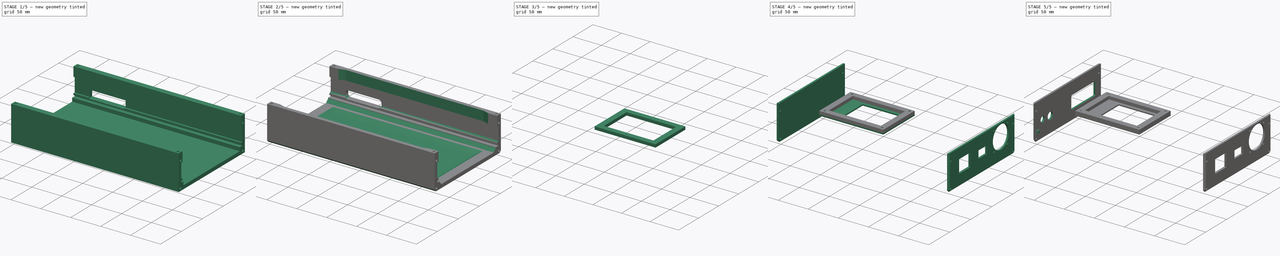
[diagram: build sequence overview — one tinted view per stage of 5, left to right]
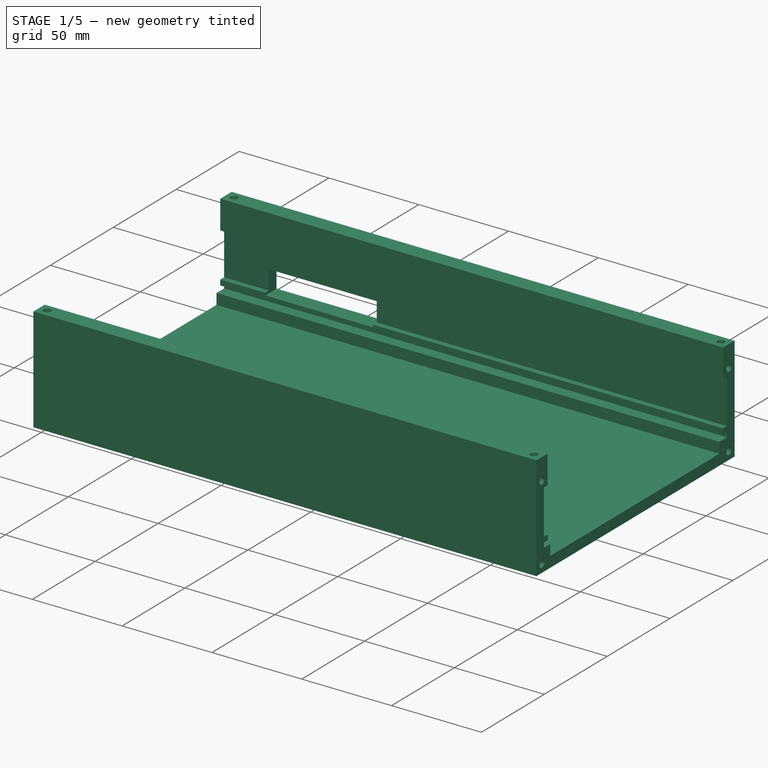
[diagram: stage 1 of 5 — iso view after this stage's code; geometry added in this stage tinted green]
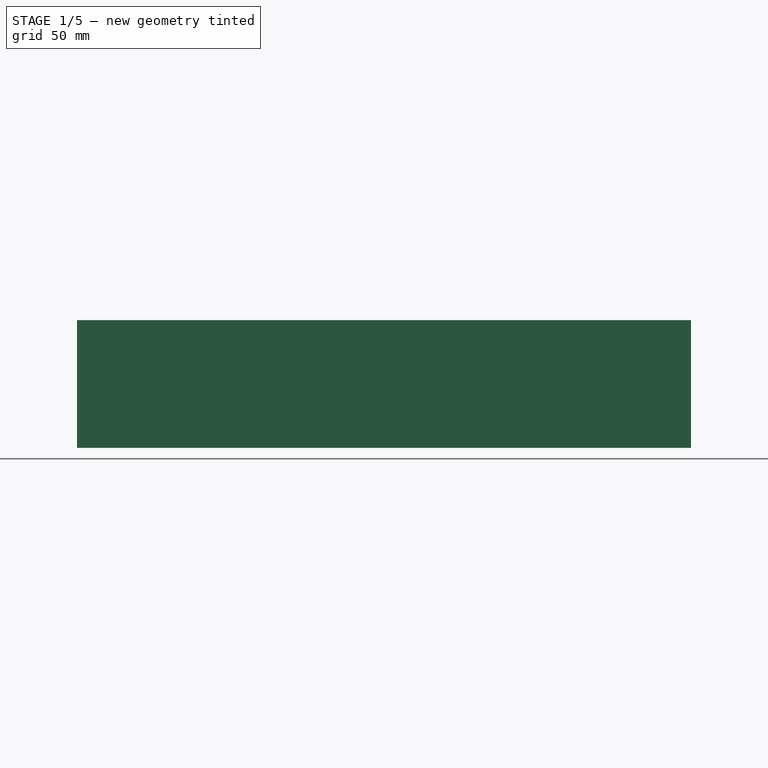
[diagram: stage 1 of 5 — front view after this stage's code; geometry added in this stage tinted green]
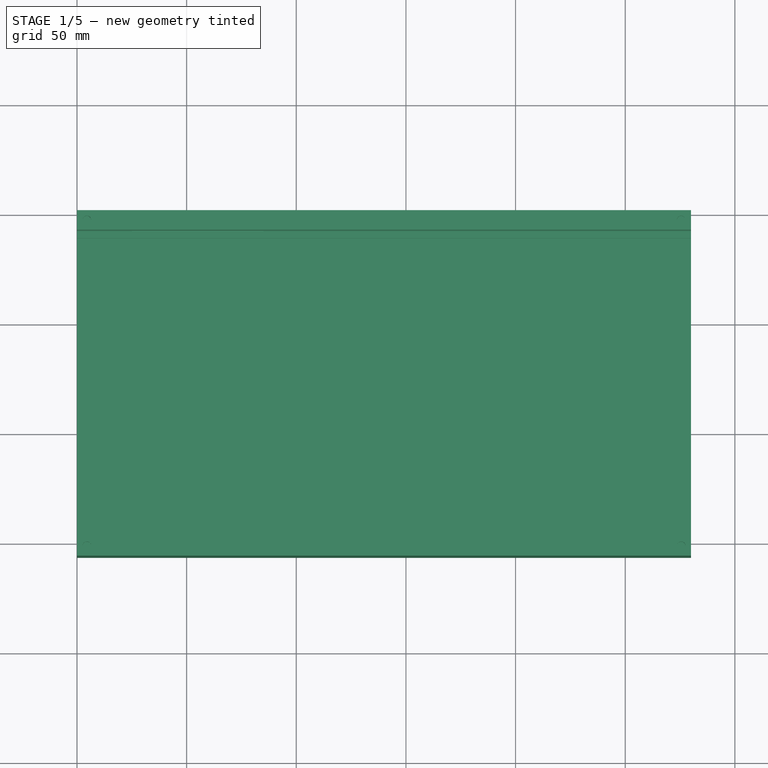
[diagram: stage 1 of 5 — top view after this stage's code; geometry added in this stage tinted green]
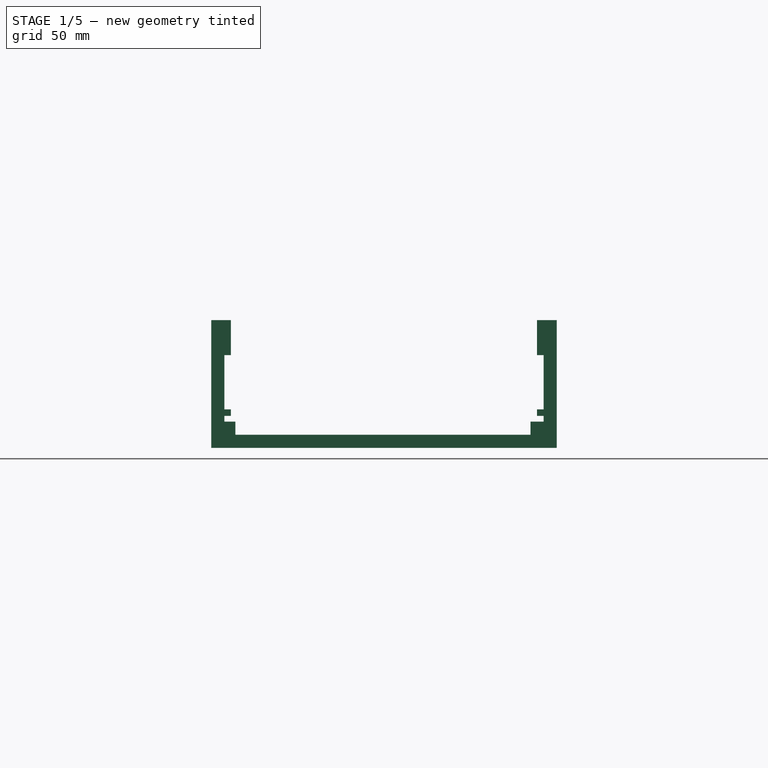
[diagram: stage 1 of 5 — right view after this stage's code; geometry added in this stage tinted green]
FCSTD DOCUMENT  (FreeCAD 0.20R29603 (Git))
Label: keys
License: All rights reserved
LicenseURL: http://en.wikipedia.org/wiki/All_rights_reserved
objects: Sketcher::SketchObject×23, PartDesign::ShapeBinder×12, PartDesign::Pocket×12, PartDesign::Pad×11, PartDesign::Body×9, PartDesign::Chamfer×5, PartDesign::Plane×2, PartDesign::Mirrored×2, PartDesign::Fillet×2, Spreadsheet::Sheet×1
note: 108 computed .brp shape members not serialized (recipe doc carries the construction recipe); baked Part::Feature solids carry a one-line shape summary decoded from their .brp

FEATURE [Sketcher::SketchObject] Sketch
  FullyConstrained = true
  MapMode = 5
  Support = -> [XY_Plane]
  expr: Constraints[21] = <<dims>>.Mtwofive
  expr: Constraints[22] = <<dims>>.Mtwofive
  expr: Constraints[23] = <<dims>>.Mtwofive
  expr: Constraints[24] = <<dims>>.Mtwofive
  expr: Constraints[39] = <<dims>>.Mtwo
  expr: Constraints[40] = <<dims>>.Mtwo
  expr: Constraints[41] = <<dims>>.Mtwo
  expr: Constraints[42] = <<dims>>.Mtwo
  expr: Constraints[57] = <<dims>>.Mthree
  expr: Constraints[58] = <<dims>>.Mthree
  expr: Constraints[59] = <<dims>>.Mthree
  expr: Constraints[60] = <<dims>>.Mthree
  expr: Constraints[66] = <<dims>>.Mthree
  expr: Constraints[67] = <<dims>>.Mthree
  sketch-geometry (35):
    g0: LineSegment StartX=0 StartY=0 StartZ=0 EndX=280 EndY=0 EndZ=0
    g1: LineSegment StartX=280 StartY=0 StartZ=0 EndX=280 EndY=145 EndZ=0
    g2: LineSegment StartX=280 StartY=145 StartZ=0 EndX=0 EndY=145 EndZ=0
    g3: LineSegment StartX=0 StartY=145 StartZ=0 EndX=0 EndY=0 EndZ=0
    g4: LineSegment StartX=26 StartY=135 StartZ=0 EndX=84 EndY=135 EndZ=0
    g5: LineSegment StartX=84 StartY=135 StartZ=0 EndX=84 EndY=86 EndZ=0
    g6: LineSegment StartX=84 StartY=86 StartZ=0 EndX=26 EndY=86 EndZ=0
    g7: LineSegment StartX=26 StartY=86 StartZ=0 EndX=26 EndY=135 EndZ=0
    g8: Circle CenterX=26 CenterY=135 CenterZ=0 NormalX=0 NormalY=0 NormalZ=1 AngleXU=0 Radius=1.2
    g9: Circle CenterX=84 CenterY=135 CenterZ=0 NormalX=0 NormalY=0 NormalZ=1 AngleXU=0 Radius=1.2
    g10: Circle CenterX=84 CenterY=86 CenterZ=0 NormalX=0 NormalY=0 NormalZ=1 AngleXU=0 Radius=1.2
    g11: Circle CenterX=26 CenterY=86 CenterZ=0 NormalX=0 NormalY=0 NormalZ=1 AngleXU=0 Radius=1.2
    g12: LineSegment StartX=5 StartY=66 StartZ=0 EndX=70.5 EndY=66 EndZ=0
    g13: LineSegment StartX=70.5 StartY=66 StartZ=0 EndX=70.5 EndY=40.45 EndZ=0
    g14: LineSegment StartX=70.5 StartY=40.45 StartZ=0 EndX=5 EndY=40.45 EndZ=0
    g15: LineSegment StartX=5 StartY=40.45 StartZ=0 EndX=5 EndY=66 EndZ=0
    g16: Circle CenterX=5 CenterY=66 CenterZ=0 NormalX=0 NormalY=0 NormalZ=1 AngleXU=0 Radius=0.925
    g17: Circle CenterX=70.5 CenterY=66 CenterZ=0 NormalX=0 NormalY=0 NormalZ=1 AngleXU=0 Radius=0.925
    g18: Circle CenterX=70.5 CenterY=40.45 CenterZ=0 NormalX=0 NormalY=0 NormalZ=1 AngleXU=0 Radius=0.925
    g19: Circle CenterX=5 CenterY=40.45 CenterZ=0 NormalX=0 NormalY=0 NormalZ=1 AngleXU=0 Radius=0.925
    g20: LineSegment StartX=172 StartY=135 StartZ=0 EndX=215 EndY=135 EndZ=0
    g21: LineSegment StartX=215 StartY=135 StartZ=0 EndX=215 EndY=114 EndZ=0
    g22: LineSegment StartX=215 StartY=114 StartZ=0 EndX=172 EndY=114 EndZ=0
    g23: LineSegment StartX=172 StartY=114 StartZ=0 EndX=172 EndY=135 EndZ=0
    g24: Circle CenterX=172 CenterY=135 CenterZ=0 NormalX=0 NormalY=0 NormalZ=1 AngleXU=0 Radius=1.45
    g25: Circle CenterX=172 CenterY=114 CenterZ=0 NormalX=0 NormalY=0 NormalZ=1 AngleXU=0 Radius=1.45
    g26: Circle CenterX=215 CenterY=114 CenterZ=0 NormalX=0 NormalY=0 NormalZ=1 AngleXU=0 Radius=1.45
    g27: Circle CenterX=215 CenterY=135 CenterZ=0 NormalX=0 NormalY=0 NormalZ=1 AngleXU=0 Radius=1.45
    g28: LineSegment StartX=208 StartY=87 StartZ=0 EndX=208 EndY=32 EndZ=0
    g29: Circle CenterX=208 CenterY=87 CenterZ=0 NormalX=0 NormalY=0 NormalZ=1 AngleXU=0 Radius=1.45
    g30: Circle CenterX=208 CenterY=32 CenterZ=0 NormalX=0 NormalY=0 NormalZ=1 AngleXU=0 Radius=1.45
    g31: LineSegment StartX=167 StartY=110 StartZ=0 EndX=249 EndY=110 EndZ=0
    g32: LineSegment StartX=249 StartY=110 StartZ=0 EndX=249 EndY=12 EndZ=0
    g33: LineSegment StartX=249 StartY=12 StartZ=0 EndX=167 EndY=12 EndZ=0
    g34: LineSegment StartX=167 StartY=12 StartZ=0 EndX=167 EndY=110 EndZ=0
  constraints (91):
    c: Coincident(g0,g1)
    c: Coincident(g1,g2)
    c: Coincident(g2,g3)
    c: Coincident(g3,g0)
    c: Horizontal(g0)
    c: Horizontal(g2)
    c: Vertical(g1)
    c: Vertical(g3)
    c: Coincident(g0,g-1)
    c: Coincident(g4,g5)
    c: Coincident(g5,g6)
    c: Coincident(g6,g7)
    c: Coincident(g7,g4)
    c: Horizontal(g4)
    c: Horizontal(g6)
    c: Vertical(g5)
    c: Vertical(g7)
    c: Coincident(g8,g4)
    c: Coincident(g9,g4)
    c: Coincident(g10,g5)
    c: Coincident(g11,g6)
    c: Diameter(g8) = 2.4
    c: Diameter(g9) = 2.4
    c: Diameter(g10) = 2.4
    c: Diameter(g11) = 2.4
    c: Distance(g4) = 58
    c: Distance(g7) = 49
    c: Coincident(g12,g13)
    c: Coincident(g13,g14)
    c: Coincident(g14,g15)
    c: Coincident(g15,g12)
    c: Horizontal(g12)
    c: Horizontal(g14)
    c: Vertical(g13)
    c: Vertical(g15)
    c: Coincident(g16,g12)
    c: Coincident(g17,g12)
    c: Coincident(g18,g13)
    c: Coincident(g19,g14)
    c: Diameter(g16) = 1.85
    c: Diameter(g17) = 1.85
    c: Diameter(g18) = 1.85
    c: Diameter(g19) = 1.85
    c: Distance(g15) = 25.55
    c: Distance(g14) = 65.5
    c: Coincident(g20,g21)
    c: Coincident(g21,g22)
    c: Coincident(g22,g23)
    c: Coincident(g23,g20)
    c: Horizontal(g20)
    c: Horizontal(g22)
    c: Vertical(g21)
    c: Vertical(g23)
    c: Coincident(g24,g20)
    c: Coincident(g25,g22)
    c: Coincident(g26,g21)
    c: Coincident(g27,g20)
    c: Diameter(g24) = 2.9
    c: Diameter(g27) = 2.9
    c: Diameter(g26) = 2.9
    c: Diameter(g25) = 2.9
    c: Distance(g23) = 21
    c: Distance(g22) = 43
    c: Vertical(g28)
    c: Coincident(g29,g28)
    c: Coincident(g30,g28)
    c: Diameter(g29) = 2.9
    c: Diameter(g30) = 2.9
    c: Distance(g28) = 55
    c: DistanceY(g30) = 32
    c: DistanceX(g30,g0) = 72
    c: Coincident(g31,g32)
    c: Coincident(g32,g33)
    c: Coincident(g33,g34)
    c: Coincident(g34,g31)
    c: Horizontal(g31)
    c: Horizontal(g33)
    c: Vertical(g32)
    c: Vertical(g34)
    c: DistanceY(g33,g30) = 20
    c: DistanceY(g29,g31) = 23
    c: DistanceX(g33,g30) = 41
    c: DistanceX(g30,g32) = 41
    c: DistanceX(g0,g0) = 280
    c: DistanceX(g0,g19) = 5
    c: DistanceX(g0,g11) = 26
    c: DistanceY(g8,g2) = 10
    c: DistanceY(g24,g2) = 10
    c: DistanceY(g0,g2) = 145
    c: DistanceY(g16,g11) = 20
    c: DistanceX(g27,g1) = 65
FEATURE [Spreadsheet::Sheet] Spreadsheet  label="dims"
  cells = A1=M3; B1(Mthree)=2.9; A2=M2.5; B2(Mtwofive)=2.4; A3=M2; B3(Mtwo)=1.85; A4=M3 Insert; B4(Mthree_insert)==3.9 mm; A5=M3 free; B5(Mthree_free)=3.1
FEATURE [PartDesign::Pad] Pad
  Direction = (0,0,1)
  Length = 2
  Length2 = 10
  Profile = -> Sketch
  ReferenceAxis = -> Sketch [N_Axis]
  Type = 0
FEATURE [PartDesign::Body] Body003  label="M2_standoff"
  Group = -> [Sketch003,Pad003]
  Origin = -> Origin003
  Tip = -> Pad003
FEATURE [PartDesign::ShapeBinder] ShapeBinder
  Support = -> [Pad]
  TraceSupport = false
FEATURE [Sketcher::SketchObject] Sketch004
  ExternalGeometry = -> [ShapeBinder]
  FullyConstrained = true
  MapMode = 5
  Placement = pos=(0,0,0) rot=(-0.57735,0.57735,0.57735;4.18879rad)
  Support = -> [YZ_Plane004]
  sketch-geometry (24):
    g0: LineSegment StartX=-2.7 StartY=2.3 StartZ=0 EndX=0.3 EndY=2.3 EndZ=0
    g1: LineSegment StartX=0.3 StartY=2.3 StartZ=0 EndX=0.3 EndY=-0.3 EndZ=0
    g2: LineSegment StartX=0.3 StartY=-0.3 StartZ=0 EndX=-4.7 EndY=-0.3 EndZ=0
    g3: LineSegment StartX=-4.7 StartY=-0.3 StartZ=0 EndX=-4.7 EndY=-6.3 EndZ=0
    g4: LineSegment StartX=-2.7 StartY=2.3 StartZ=0 EndX=-2.7 EndY=5.3 EndZ=0
    g5: LineSegment StartX=-2.7 StartY=5.3 StartZ=0 EndX=0.3 EndY=5.3 EndZ=0
    g6: LineSegment StartX=-2.7 StartY=46 StartZ=0 EndX=6.3 EndY=46 EndZ=0
    g7: LineSegment StartX=6.3 StartY=46 StartZ=0 EndX=6.3 EndY=-12.3 EndZ=0
    g8: LineSegment StartX=6.3 StartY=-12.3 StartZ=0 EndX=-151.3 EndY=-12.3 EndZ=0
    g9: LineSegment StartX=-4.7 StartY=-6.3 StartZ=0 EndX=-139.3 EndY=-6.3 EndZ=0
    g10: LineSegment StartX=-139.3 StartY=-6.3 StartZ=0 EndX=-139.3 EndY=-0.3 EndZ=0
    g11: LineSegment StartX=-139.3 StartY=-0.3 StartZ=0 EndX=-145.3 EndY=-0.3 EndZ=0
    g12: LineSegment StartX=-145.3 StartY=-0.3 StartZ=0 EndX=-145.3 EndY=2.3 EndZ=0
    g13: LineSegment StartX=-145.3 StartY=2.3 StartZ=0 EndX=-142.3 EndY=2.3 EndZ=0
    g14: LineSegment StartX=-142.3 StartY=2.3 StartZ=0 EndX=-142.3 EndY=5.3 EndZ=0
    g15: LineSegment StartX=-142.3 StartY=5.3 StartZ=0 EndX=-145.3 EndY=5.3 EndZ=0
    g16: LineSegment StartX=-142.3 StartY=46 StartZ=0 EndX=-151.3 EndY=46 EndZ=0
    g17: LineSegment StartX=-151.3 StartY=46 StartZ=0 EndX=-151.3 EndY=-12.3 EndZ=0
    g18: LineSegment StartX=0.3 StartY=5.3 StartZ=0 EndX=0.3 EndY=30 EndZ=0
    g19: LineSegment StartX=-145.3 StartY=5.3 StartZ=0 EndX=-145.3 EndY=30 EndZ=0
    g20: LineSegment StartX=-142.3 StartY=46 StartZ=0 EndX=-142.3 EndY=30 EndZ=0
    g21: LineSegment StartX=-142.3 StartY=30 StartZ=0 EndX=-145.3 EndY=30 EndZ=0
    g22: LineSegment StartX=-2.7 StartY=46 StartZ=0 EndX=-2.7 EndY=30 EndZ=0
    g23: LineSegment StartX=-2.7 StartY=30 StartZ=0 EndX=0.3 EndY=30 EndZ=0
  constraints (65):
    c: Horizontal(g0)
    c: Coincident(g1,g0)
    c: Vertical(g1)
    c: Coincident(g2,g1)
    c: Horizontal(g2)
    c: Coincident(g3,g2)
    c: Vertical(g3)
    c: Coincident(g4,g0)
    c: Vertical(g4)
    c: Coincident(g5,g4)
    c: Horizontal(g5)
    c: Coincident(g18,g5)
    c: Horizontal(g6)
    c: Coincident(g7,g6)
    c: Vertical(g7)
    c: Coincident(g8,g7)
    c: Horizontal(g8)
    c: Coincident(g9,g3)
    c: Horizontal(g9)
    c: Coincident(g10,g9)
    c: Vertical(g10)
    c: Coincident(g11,g10)
    c: Coincident(g12,g11)
    c: Vertical(g12)
    c: Coincident(g13,g12)
    c: Coincident(g14,g13)
    c: Vertical(g14)
    c: Coincident(g15,g14)
    c: Coincident(g19,g15)
    c: Coincident(g17,g16)
    c: Coincident(g17,g8)
    c: Vertical(g17)
    c: Tangent(g15,g5)
    c: Tangent(g13,g0)
    c: Tangent(g2,g11)
    c: DistanceX(g-3,g0) = 0.3
    c: DistanceY(g1,g-4) = 0.3
    c: DistanceY(g-3,g0) = 0.3
    c: Distance(g3) = 6
    c: DistanceY(g7,g3) = 6
    c: Distance(g2) = 5
    c: Distance(g0) = 3
    c: Distance(g4) = 3
    c: DistanceY(g-3,g6) = 44
    c: DistanceX(g11,g-4) = 0.3
    c: DistanceX(g12,g13) = 3
    c: Distance(g11) = 6
    c: Tangent(g6,g16)
    c: Tangent(g18,g1)
    c: Tangent(g12,g19)
    c: Vertical(g20)
    c: Coincident(g21,g20)
    c: Coincident(g21,g19)
    c: Horizontal(g21)
    c: Vertical(g22)
    c: Coincident(g23,g22)
    c: Coincident(g23,g18)
    c: Tangent(g21,g23)
    c: Coincident(g16,g20)
    c: Coincident(g6,g22)
    c: DistanceX(g16,g19) = 6
    c: DistanceX(g18,g6) = 6
    c: Distance(g23) = 3
    c: Distance(g21) = 3
    c: Distance(g22) = 16
FEATURE [PartDesign::ShapeBinder] ShapeBinder001
  Support = -> [Pad]
  TraceSupport = false
FEATURE [PartDesign::Pad] Pad004
  Direction = (-1,2e-16,-3e-16)
  Length = 10
  Length2 = 10
  Placement = pos=(0,0,0) rot=(0.57735,0.57735,0.57735;2.0944rad)
  Profile = -> Sketch004
  ReferenceAxis = -> Sketch004 [N_Axis]
  Type = 3
  UpToFace = -> Pad [Face2]
FEATURE [Sketcher::SketchObject] Sketch005
  ExternalGeometry = -> [ShapeBinder]
  FullyConstrained = true
  MapMode = 5
  Placement = pos=(6.66e-14,151.3,-3.33e-14) rot=(0.57735,0.57735,0.57735;4.18879rad)
  Support = -> [Pad004]
  sketch-geometry (4):
    g0: LineSegment StartX=16 StartY=25 StartZ=0 EndX=4 EndY=25 EndZ=0
    g1: LineSegment StartX=4 StartY=25 StartZ=0 EndX=4 EndY=85 EndZ=0
    g2: LineSegment StartX=4 StartY=85 StartZ=0 EndX=16 EndY=85 EndZ=0
    g3: LineSegment StartX=16 StartY=85 StartZ=0 EndX=16 EndY=25 EndZ=0
  constraints (12):
    c: Coincident(g0,g1)
    c: Coincident(g1,g2)
    c: Coincident(g2,g3)
    c: Coincident(g3,g0)
    c: Horizontal(g0)
    c: Horizontal(g2)
    c: Vertical(g1)
    c: Vertical(g3)
    c: DistanceY(g-1,g0) = 25
    c: Distance(g1) = 60
    c: DistanceX(g-3,g0) = 2
    c: Distance(g2) = 12
FEATURE [PartDesign::Pocket] Pocket
  BaseFeature = -> Pad004
  Direction = (-4e-16,-1,2e-16)
  Length = 15
  Length2 = 5
  Placement = pos=(0,0,0) rot=(0.57735,0.57735,0.57735;2.0944rad)
  Profile = -> Sketch005
  ReferenceAxis = -> Sketch005 [N_Axis]
  Type = 0
FEATURE [Sketcher::SketchObject] Sketch006
  ExternalGeometry = -> [Pocket]
  FullyConstrained = true
  MapMode = 5
  Placement = pos=(0,0,0) rot=(-0.57735,0.57735,0.57735;4.18879rad)
  Support = -> [YZ_Plane004]
  expr: Constraints[16] = <<dims>>.Mthree_insert
  expr: Constraints[17] = <<dims>>.Mthree_insert
  expr: Constraints[18] = <<dims>>.Mthree_insert
  expr: Constraints[19] = <<dims>>.Mthree_insert
  sketch-geometry (8):
    g0: LineSegment StartX=-146.8 StartY=-7.8 StartZ=0 EndX=1.8 EndY=-7.8 EndZ=0
    g1: LineSegment StartX=1.8 StartY=-7.8 StartZ=0 EndX=1.8 EndY=34 EndZ=0
    g2: LineSegment StartX=1.8 StartY=34 StartZ=0 EndX=-146.8 EndY=34 EndZ=0
    g3: LineSegment StartX=-146.8 StartY=34 StartZ=0 EndX=-146.8 EndY=-7.8 EndZ=0
    g4: Circle CenterX=-146.8 CenterY=34 CenterZ=0 NormalX=0 NormalY=0 NormalZ=1 AngleXU=0 Radius=1.95
    g5: Circle CenterX=-146.8 CenterY=-7.8 CenterZ=0 NormalX=0 NormalY=0 NormalZ=1 AngleXU=0 Radius=1.95
    g6: Circle CenterX=1.8 CenterY=-7.8 CenterZ=0 NormalX=0 NormalY=0 NormalZ=1 AngleXU=0 Radius=1.95
    g7: Circle CenterX=1.8 CenterY=34 CenterZ=0 NormalX=0 NormalY=0 NormalZ=1 AngleXU=0 Radius=1.95
  constraints (20):
    c: Coincident(g0,g1)
    c: Coincident(g1,g2)
    c: Coincident(g2,g3)
    c: Coincident(g3,g0)
    c: Horizontal(g0)
    c: Horizontal(g2)
    c: Vertical(g1)
    c: Vertical(g3)
    c: DistanceX(g0,g-3) = 4.5
    c: DistanceX(g-3,g0) = 4.5
    c: DistanceY(g-3,g0) = 4.5
    c: DistanceY(g1,g-4) = 12
    c: Coincident(g4,g2)
    c: Coincident(g5,g0)
    c: Coincident(g6,g0)
    c: Coincident(g7,g1)
    c: Diameter(g4) = 3.9
    c: Diameter(g7) = 3.9
    c: Diameter(g6) = 3.9
    c: Diameter(g5) = 3.9
FEATURE [PartDesign::Plane] DatumPlane
  AttachmentOffset = pos=(0,0,140) rot=(0,0,1;0rad)
  Length = 198.676
  MapMode = 5
  Placement = pos=(140,-3.11e-14,3.11e-14) rot=(0.57735,0.57735,0.57735;2.0944rad)
  ResizeMode = 0
  Support = -> [YZ_Plane004]
  Width = 93.3761
FEATURE [PartDesign::Pocket] Pocket001
  BaseFeature = -> Pocket
  Direction = (1,-2e-16,3e-16)
  Length = 5
  Length2 = 5
  Placement = pos=(0,0,0) rot=(0.57735,0.57735,0.57735;2.0944rad)
  Profile = -> Sketch006
  ReferenceAxis = -> Sketch006 [N_Axis]
  Type = 0
FEATURE [Sketcher::SketchObject] Sketch007
  ExternalGeometry = -> [Pocket001]
  FullyConstrained = true
  MapMode = 5
  Placement = pos=(-1.29e-14,2.02e-14,46) rot=(0,0,-1;1.5708rad)
  Support = -> [Pocket001]
  expr: Constraints[6] = <<dims>>.Mthree_insert
  expr: Constraints[7] = <<dims>>.Mthree_insert
  sketch-geometry (3):
    g0: LineSegment StartX=-146.8 StartY=4.5 StartZ=0 EndX=1.8 EndY=4.5 EndZ=0
    g1: Circle CenterX=1.8 CenterY=4.5 CenterZ=0 NormalX=0 NormalY=0 NormalZ=1 AngleXU=0 Radius=1.95
    g2: Circle CenterX=-146.8 CenterY=4.5 CenterZ=0 NormalX=0 NormalY=0 NormalZ=1 AngleXU=0 Radius=1.95
  constraints (8):
    c: Horizontal(g0)
    c: DistanceY(g-3,g0) = 4.5
    c: DistanceX(g0,g-3) = 4.5
    c: DistanceX(g-4,g0) = 4.5
    c: Coincident(g1,g0)
    c: Coincident(g2,g0)
    c: Diameter(g2) = 3.9
    c: Diameter(g1) = 3.9
FEATURE [PartDesign::Pocket] Pocket002
  BaseFeature = -> Pocket001
  Direction = (1.1e-15,-8e-16,-1)
  Length = 5
  Length2 = 5
  Placement = pos=(0,0,0) rot=(0.57735,0.57735,0.57735;2.0944rad)
  Profile = -> Sketch007
  ReferenceAxis = -> Sketch007 [N_Axis]
  Type = 0
FEATURE [PartDesign::Mirrored] Mirrored
  BaseFeature = -> Pocket002
  MirrorPlane = -> DatumPlane
  Originals = -> [Pocket001,Pocket002]
  Placement = pos=(0,0,0) rot=(0.57735,0.57735,0.57735;2.0944rad)
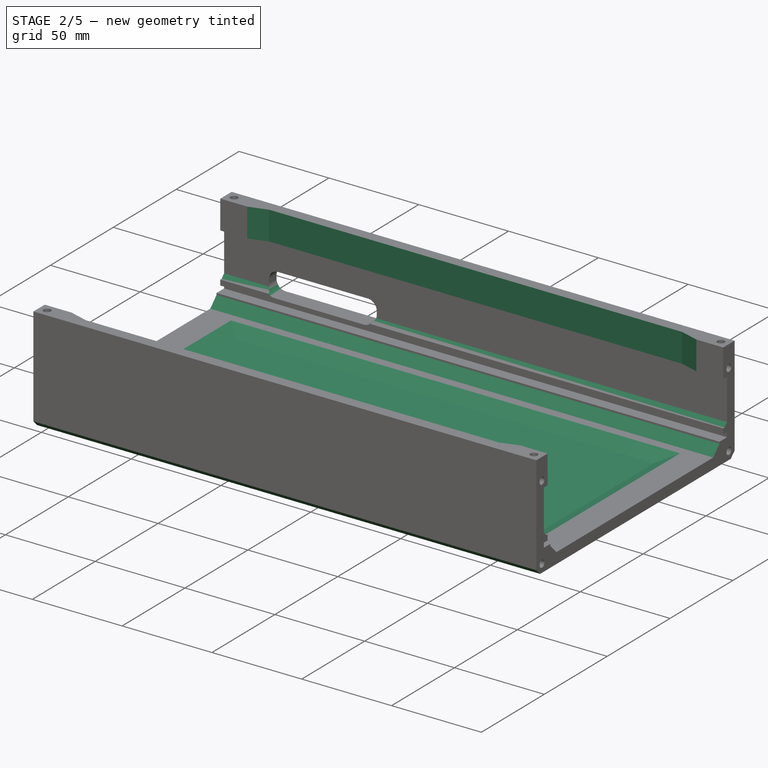
[diagram: stage 2 of 5 — iso view after this stage's code; geometry added in this stage tinted green]
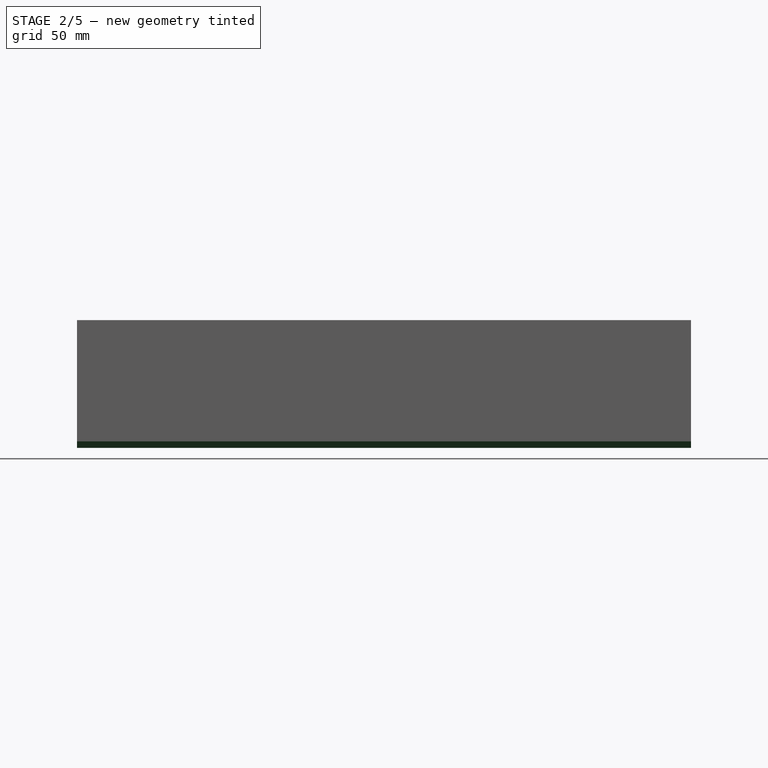
[diagram: stage 2 of 5 — front view after this stage's code; geometry added in this stage tinted green]
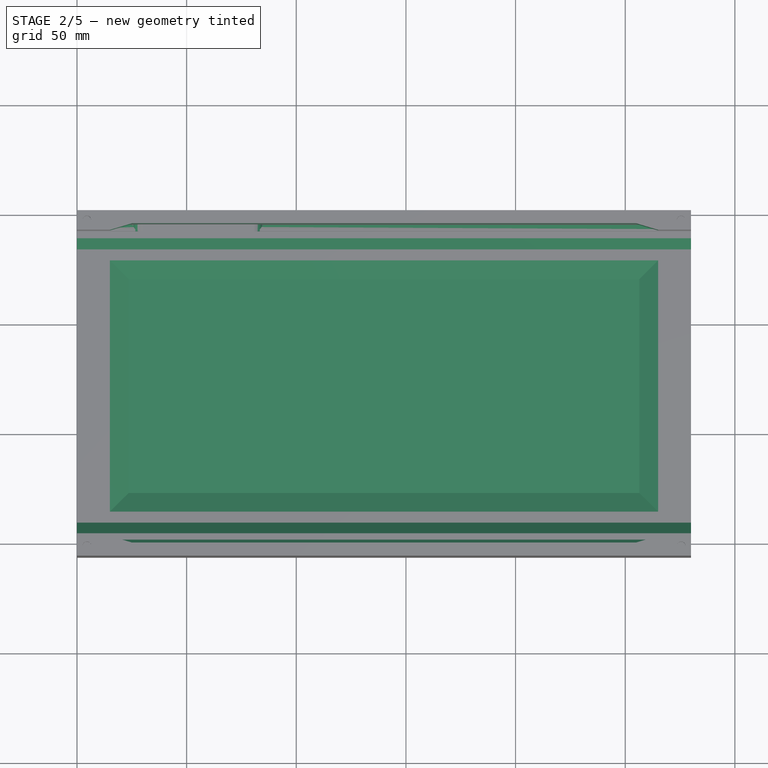
[diagram: stage 2 of 5 — top view after this stage's code; geometry added in this stage tinted green]
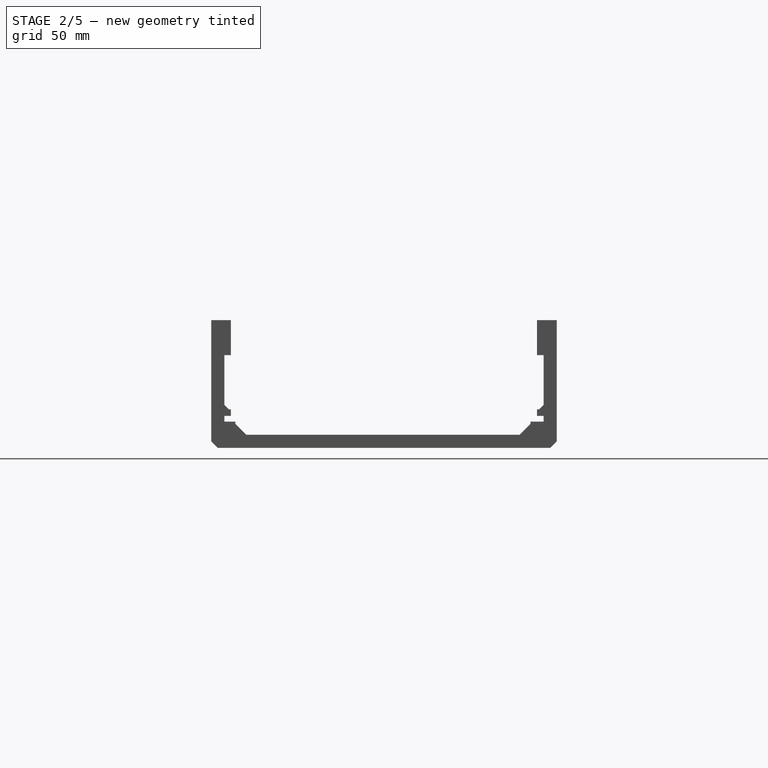
[diagram: stage 2 of 5 — right view after this stage's code; geometry added in this stage tinted green]
FEATURE [Sketcher::SketchObject] Sketch008
  ExternalGeometry = -> [Mirrored]
  FullyConstrained = true
  MapMode = 5
  Placement = pos=(-8.4e-15,7.95e-13,30) rot=(0.707107,0.707107,0;3.14159rad)
  Support = -> [Mirrored]
  sketch-geometry (4):
    g0: LineSegment StartX=2.7 StartY=265 StartZ=0 EndX=-0.3 EndY=255 EndZ=0
    g1: LineSegment StartX=2.7 StartY=265 StartZ=0 EndX=2.7 EndY=15 EndZ=0
    g2: LineSegment StartX=2.7 StartY=15 StartZ=0 EndX=-0.3 EndY=25 EndZ=0
    g3: LineSegment StartX=-0.3 StartY=25 StartZ=0 EndX=-0.3 EndY=255 EndZ=0
  constraints (12):
    c: PointOnObject(g0,g-3)
    c: PointOnObject(g0,g-4)
    c: Coincident(g1,g0)
    c: PointOnObject(g1,g-3)
    c: Coincident(g2,g1)
    c: PointOnObject(g2,g-4)
    c: Coincident(g3,g2)
    c: Coincident(g3,g0)
    c: DistanceY(g0,g-3) = 15
    c: DistanceY(g0,g-4) = 25
    c: DistanceY(g-4,g2) = 25
    c: DistanceY(g-3,g1) = 15
FEATURE [PartDesign::Pocket] Pocket003
  BaseFeature = -> Mirrored
  Direction = (-1.4e-15,2.69e-14,1)
  Length = 5
  Length2 = 5
  Placement = pos=(0,0,0) rot=(0.57735,0.57735,0.57735;2.0944rad)
  Profile = -> Sketch008
  ReferenceAxis = -> Sketch008 [N_Axis]
  Type = 1
FEATURE [PartDesign::Plane] DatumPlane001
  AttachmentOffset = pos=(0,0,78.8) rot=(0,0,1;0rad)
  Length = 100.431
  MapMode = 5
  Placement = pos=(2.35e-14,72.5,-7.4e-15) rot=(0.57735,0.57735,0.57735;4.18879rad)
  ResizeMode = 0
  Support = -> [Pocket003]
  Width = 334.431
  expr: .AttachmentOffset.Base.z = 157.6 / 2
FEATURE [PartDesign::Mirrored] Mirrored001
  BaseFeature = -> Pocket003
  MirrorPlane = -> DatumPlane001
  Originals = -> [Pocket003]
  Placement = pos=(0,0,0) rot=(0.57735,0.57735,0.57735;2.0944rad)
FEATURE [Sketcher::SketchObject] Sketch009
  ExternalGeometry = -> [Mirrored001]
  FullyConstrained = true
  MapMode = 5
  Placement = pos=(1.8e-15,-2.8e-15,-6.3) rot=(0,0,-1;1.5708rad)
  Support = -> [Mirrored001]
  sketch-geometry (4):
    g0: LineSegment StartX=-129.3 StartY=265 StartZ=0 EndX=-14.7 EndY=265 EndZ=0
    g1: LineSegment StartX=-14.7 StartY=265 StartZ=0 EndX=-14.7 EndY=15 EndZ=0
    g2: LineSegment StartX=-14.7 StartY=15 StartZ=0 EndX=-129.3 EndY=15 EndZ=0
    g3: LineSegment StartX=-129.3 StartY=15 StartZ=0 EndX=-129.3 EndY=265 EndZ=0
  constraints (12):
    c: Coincident(g0,g1)
    c: Coincident(g1,g2)
    c: Coincident(g2,g3)
    c: Coincident(g3,g0)
    c: Horizontal(g0)
    c: Horizontal(g2)
    c: Vertical(g1)
    c: Vertical(g3)
    c: DistanceY(g-4,g1) = 15
    c: DistanceX(g1,g-4) = 10
    c: DistanceX(g-4,g2) = 10
    c: DistanceY(g0,g-3) = 15
FEATURE [PartDesign::Pocket] Pocket004
  BaseFeature = -> Mirrored001
  Direction = (1.7e-15,-1e-15,-1)
  Length = 4
  Length2 = 5
  Placement = pos=(0,0,0) rot=(0.57735,0.57735,0.57735;2.0944rad)
  Profile = -> Sketch009
  ReferenceAxis = -> Sketch009 [N_Axis]
  TaperAngle = -65
  Type = 0
FEATURE [PartDesign::Chamfer] Chamfer
  Angle = 45
  Base = -> Pocket004 [Edge77,Edge79]
  BaseFeature = -> Pocket004
  ChamferType = 1
  FlipDirection = false
  Placement = pos=(0,0,0) rot=(0.57735,0.57735,0.57735;2.0944rad)
  Size = 5
  Size2 = 5
  SupportTransform = false
  UseAllEdges = false
FEATURE [PartDesign::Fillet] Fillet
  Base = -> Chamfer [Edge147,Edge145,Edge146,Edge144]
  BaseFeature = -> Chamfer
  Placement = pos=(0,0,0) rot=(0.57735,0.57735,0.57735;2.0944rad)
  Radius = 5
  SupportTransform = false
  UseAllEdges = false
FEATURE [PartDesign::Chamfer] Chamfer001
  Angle = 45
  Base = -> Fillet [Edge127,Edge96]
  BaseFeature = -> Fillet
  ChamferType = 0
  FlipDirection = false
  Placement = pos=(0,0,0) rot=(0.57735,0.57735,0.57735;2.0944rad)
  Size = 3
  Size2 = 1
  SupportTransform = false
  UseAllEdges = false
FEATURE [PartDesign::Chamfer] Chamfer002
  Angle = 45
  Base = -> Chamfer001 [Edge96,Edge86,Edge67]
  BaseFeature = -> Chamfer001
  ChamferType = 0
  FlipDirection = false
  Placement = pos=(0,0,0) rot=(0.57735,0.57735,0.57735;2.0944rad)
  Size = 2
  Size2 = 1
  SupportTransform = false
  UseAllEdges = false
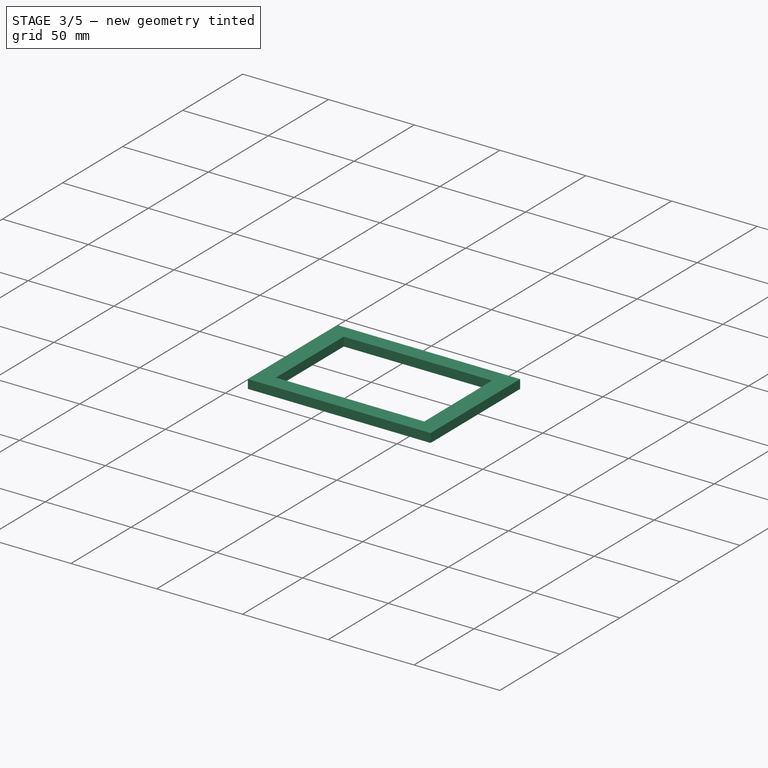
[diagram: stage 3 of 5 — iso view after this stage's code; geometry added in this stage tinted green]
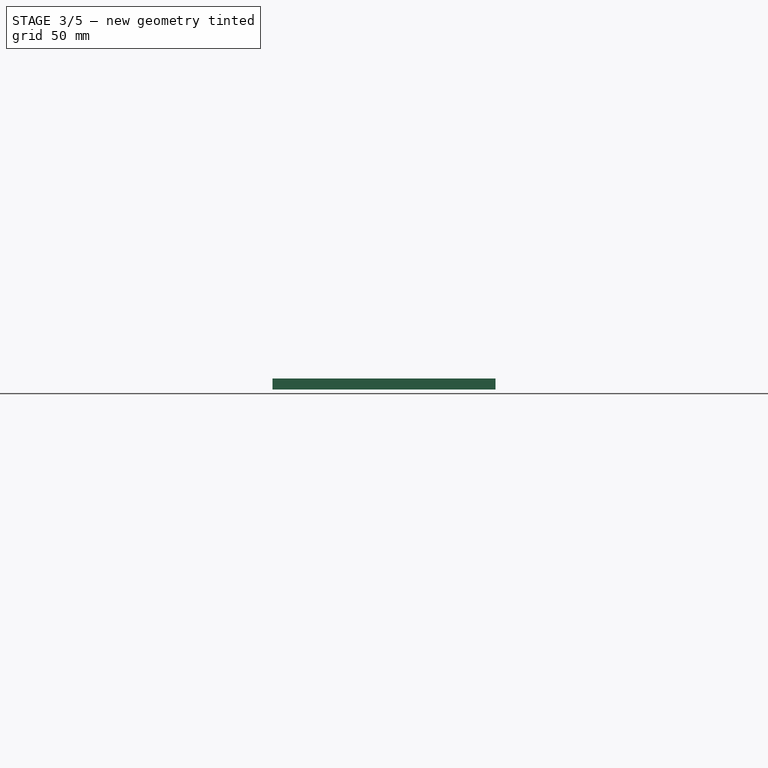
[diagram: stage 3 of 5 — front view after this stage's code; geometry added in this stage tinted green]
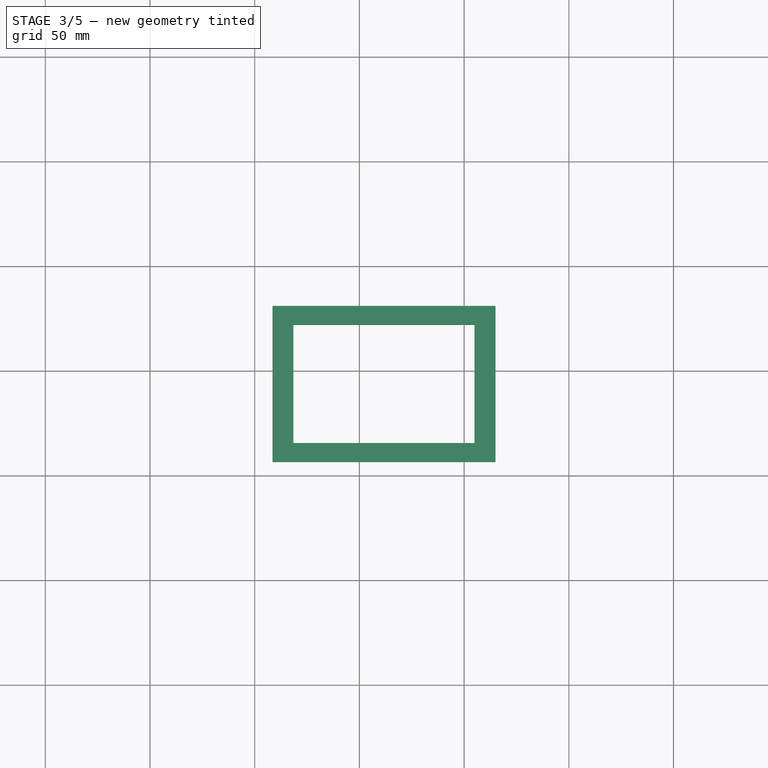
[diagram: stage 3 of 5 — top view after this stage's code; geometry added in this stage tinted green]
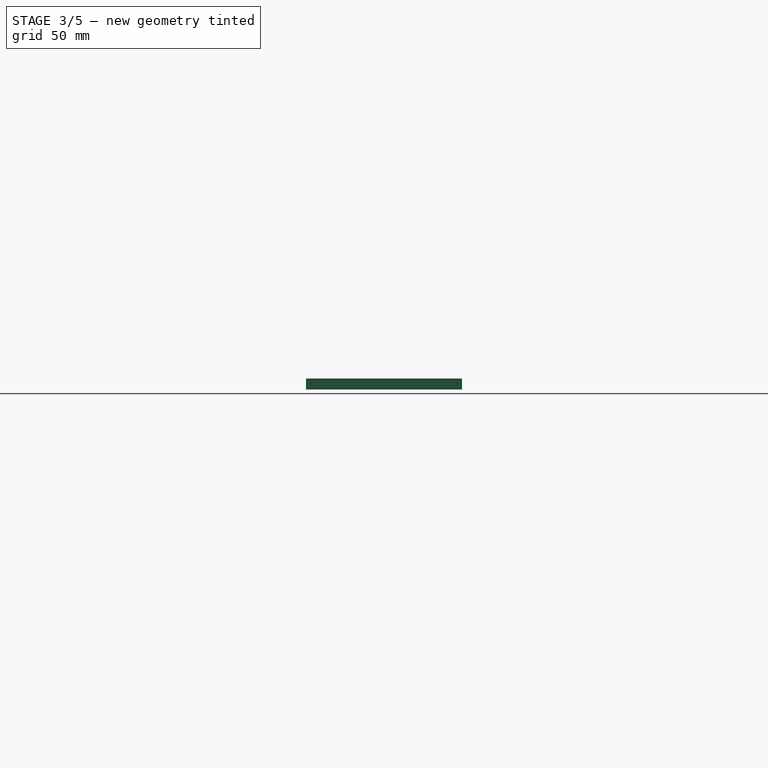
[diagram: stage 3 of 5 — right view after this stage's code; geometry added in this stage tinted green]
FEATURE [PartDesign::Body] Body006  label="RightSide"
  Group = -> [ShapeBinder004,ShapeBinder005,Sketch012,Pad006,Sketch013,Pocket006,Sketch014,Pocket007,Chamfer004]
  Origin = -> Origin006
  Tip = -> Chamfer004
FEATURE [PartDesign::ShapeBinder] ShapeBinder007
  Support = -> [Chamfer002]
  TraceSupport = false
FEATURE [PartDesign::ShapeBinder] ShapeBinder008
  Placement = pos=(0,0,0) rot=(0.57735,0.57735,0.57735;2.0944rad)
  Support = -> [Chamfer002]
  TraceSupport = false
FEATURE [PartDesign::ShapeBinder] ShapeBinder009
  Support = -> [Chamfer002]
  TraceSupport = false
FEATURE [Sketcher::SketchObject] Sketch015
  ExternalGeometry = -> [ShapeBinder008,ShapeBinder009,ShapeBinder007]
  FullyConstrained = true
  MapMode = 5
  Placement = pos=(-1.29e-14,2.02e-14,46) rot=(0,0,-1;1.5708rad)
  Support = -> [ShapeBinder008]
  expr: Constraints[14] = <<dims>>.Mthree_free
  expr: Constraints[15] = <<dims>>.Mthree_free
  expr: Constraints[16] = <<dims>>.Mthree_free
  expr: Constraints[17] = <<dims>>.Mthree_free
  sketch-geometry (8):
    g0: LineSegment StartX=-151.3 StartY=280 StartZ=0 EndX=6.3 EndY=280 EndZ=0
    g1: LineSegment StartX=6.3 StartY=280 StartZ=0 EndX=6.3 EndY=0 EndZ=0
    g2: LineSegment StartX=6.3 StartY=0 StartZ=0 EndX=-151.3 EndY=0 EndZ=0
    g3: LineSegment StartX=-151.3 StartY=0 StartZ=0 EndX=-151.3 EndY=280 EndZ=0
    g4: Circle CenterX=-146.8 CenterY=275.5 CenterZ=0 NormalX=0 NormalY=0 NormalZ=1 AngleXU=0 Radius=1.55
    g5: Circle CenterX=1.8 CenterY=275.5 CenterZ=0 NormalX=0 NormalY=0 NormalZ=1 AngleXU=0 Radius=1.55
    g6: Circle CenterX=-146.8 CenterY=4.5 CenterZ=0 NormalX=0 NormalY=0 NormalZ=1 AngleXU=0 Radius=1.55
    g7: Circle CenterX=1.8 CenterY=4.5 CenterZ=0 NormalX=0 NormalY=0 NormalZ=1 AngleXU=0 Radius=1.55
  constraints (18):
    c: Coincident(g0,g1)
    c: Coincident(g1,g2)
    c: Coincident(g2,g3)
    c: Coincident(g3,g0)
    c: Horizontal(g0)
    c: Horizontal(g2)
    c: Vertical(g1)
    c: Vertical(g3)
    c: Coincident(g0,g-3)
    c: Coincident(g1,g-4)
    c: Coincident(g4,g-5)
    c: Coincident(g5,g-6)
    c: Coincident(g6,g-7)
    c: Coincident(g7,g-8)
    c: Diameter(g6) = 3.1
    c: Diameter(g7) = 3.1
    c: Diameter(g5) = 3.1
    c: Diameter(g4) = 3.1
FEATURE [PartDesign::Pad] Pad007
  Direction = (-3e-16,4e-16,1)
  Length = 4
  Length2 = 10
  Placement = pos=(0,0,0) rot=(0.57735,0.57735,0.57735;2.0944rad)
  Profile = -> Sketch015
  ReferenceAxis = -> Sketch015 [N_Axis]
  Type = 0
FEATURE [Sketcher::SketchObject] Sketch016
  ExternalGeometry = -> [Pad007]
  FullyConstrained = true
  MapMode = 5
  Placement = pos=(-1.4e-14,2.05e-14,50) rot=(0,0,-1;1.5708rad)
  Support = -> [Pad007]
  sketch-geometry (11):
    g0: LineSegment StartX=-70 StartY=70 StartZ=0 EndX=-18 EndY=70 EndZ=0
    g1: LineSegment StartX=-18 StartY=70 StartZ=0 EndX=-18 EndY=149.3 EndZ=0
    g2: LineSegment StartX=-18 StartY=149.3 StartZ=0 EndX=-70 EndY=149.3 EndZ=0
    g3: LineSegment StartX=-70 StartY=149.3 StartZ=0 EndX=-70 EndY=70 EndZ=0
    g4: Circle CenterX=-117.7 CenterY=50 CenterZ=0 NormalX=0 NormalY=0 NormalZ=1 AngleXU=0 Radius=18.25
    g5: Circle CenterX=-117.7 CenterY=230 CenterZ=0 NormalX=0 NormalY=0 NormalZ=1 AngleXU=0 Radius=18.25
    g6: LineSegment StartX=6.3 StartY=0 StartZ=0 EndX=6.3 EndY=140 EndZ=0
    g7: LineSegment StartX=6.3 StartY=140 StartZ=0 EndX=6.3 EndY=280 EndZ=0
    g8: LineSegment StartX=-117.7 StartY=50 StartZ=0 EndX=-117.7 EndY=140 EndZ=0
    g9: LineSegment StartX=-117.7 StartY=140 StartZ=0 EndX=-117.7 EndY=230 EndZ=0
    g10: LineSegment StartX=-117.7 StartY=140 StartZ=0 EndX=6.3 EndY=140 EndZ=0
  constraints (30):
    c: Coincident(g0,g1)
    c: Coincident(g1,g2)
    c: Coincident(g2,g3)
    c: Coincident(g3,g0)
    c: Horizontal(g0)
    c: Horizontal(g2)
    c: Vertical(g1)
    c: Vertical(g3)
    c: Distance(g0) = 52
    c: Distance(g1) = 79.3
    c: Diameter(g4) = 36.5
    c: Diameter(g5) = 36.5
    c: Coincident(g8,g4)
    c: Coincident(g9,g5)
    c: DistanceY(g-1,g0) = 70
    c: DistanceX(g0,g-1) = 18
    c: Coincident(g6,g-3)
    c: Coincident(g7,g-3)
    c: Coincident(g6,g7)
    c: Equal(g6,g7)
    c: Coincident(g8,g9)
    c: Vertical(g8)
    c: Vertical(g9)
    c: Distance(g8,g9) = 180
    c: Equal(g8,g9)
    c: Coincident(g10,g8)
    c: Coincident(g10,g6)
    c: Horizontal(g10)
    c: Distance(g10) = 124
    c: PointOnObject(g6,g-3)
FEATURE [PartDesign::Pocket] Pocket008
  BaseFeature = -> Pad007
  Direction = (3e-16,-4e-16,-1)
  Length = 10
  Length2 = 5
  Placement = pos=(0,0,0) rot=(0.57735,0.57735,0.57735;2.0944rad)
  Profile = -> Sketch016
  ReferenceAxis = -> Sketch016 [N_Axis]
  Type = 0
FEATURE [Sketcher::SketchObject] Sketch017
  ExternalGeometry = -> [Pocket008]
  FullyConstrained = true
  MapMode = 5
  Placement = pos=(-1.29e-14,2.14e-14,46) rot=(0.707107,0.707107,0;3.14159rad)
  Support = -> [Pocket008]
  sketch-geometry (6):
    g0: LineSegment StartX=15.6 StartY=155 StartZ=0 EndX=72.1 EndY=155 EndZ=0
    g1: LineSegment StartX=72.1 StartY=155 StartZ=0 EndX=72.1 EndY=68.5 EndZ=0
    g2: LineSegment StartX=72.1 StartY=68.5 StartZ=0 EndX=15.6 EndY=68.5 EndZ=0
    g3: LineSegment StartX=15.6 StartY=68.5 StartZ=0 EndX=15.6 EndY=155 EndZ=0
    g4: Circle CenterX=117.7 CenterY=230 CenterZ=0 NormalX=0 NormalY=0 NormalZ=1 AngleXU=0 Radius=20.5
    g5: Circle CenterX=117.7 CenterY=50 CenterZ=0 NormalX=0 NormalY=0 NormalZ=1 AngleXU=0 Radius=20.5
  constraints (16):
    c: Coincident(g0,g1)
    c: Coincident(g1,g2)
    c: Coincident(g2,g3)
    c: Coincident(g3,g0)
    c: Horizontal(g0)
    c: Horizontal(g2)
    c: Vertical(g1)
    c: Vertical(g3)
    c: Coincident(g4,g-5)
    c: Coincident(g5,g-4)
    c: Diameter(g4) = 41
    c: Diameter(g5) = 41
    c: Distance(g2) = 56.5
    c: Distance(g3) = 86.5
    c: DistanceY(g2,g-3) = 1.5
    c: DistanceX(g2,g-3) = 2.4
FEATURE [PartDesign::Pocket] Pocket009
  BaseFeature = -> Pocket008
  Direction = (-3e-16,5e-16,1)
  Length = 2
  Length2 = 5
  Placement = pos=(0,0,0) rot=(0.57735,0.57735,0.57735;2.0944rad)
  Profile = -> Sketch017
  ReferenceAxis = -> Sketch017 [N_Axis]
  Type = 0
FEATURE [Sketcher::SketchObject] Sketch018
  ExternalGeometry = -> [Pocket009]
  FullyConstrained = false
  MapMode = 5
  Placement = pos=(-1.4e-14,2.61e-14,50) rot=(0,0,-1;1.5708rad)
  Support = -> [Pocket009]
  sketch-geometry (38):
    g0: LineSegment StartX=-142.583 StartY=252.332 StartZ=0 EndX=-142.583 EndY=256.332 EndZ=0
    g1: LineSegment StartX=-142.583 StartY=256.332 StartZ=0 EndX=-92.5825 EndY=234.332 EndZ=0
    g2: LineSegment StartX=-92.5825 StartY=234.332 StartZ=0 EndX=-92.5825 EndY=230.332 EndZ=0
    g3: LineSegment StartX=-92.5825 StartY=230.332 StartZ=0 EndX=-142.583 EndY=252.332 EndZ=0
    g4: LineSegment StartX=-142.583 StartY=243.332 StartZ=0 EndX=-142.583 EndY=247.332 EndZ=0
    g5: LineSegment StartX=-142.583 StartY=247.332 StartZ=0 EndX=-92.5825 EndY=225.332 EndZ=0
    g6: LineSegment StartX=-92.5825 StartY=225.332 StartZ=0 EndX=-92.5825 EndY=221.332 EndZ=0
    g7: LineSegment StartX=-92.5825 StartY=221.332 StartZ=0 EndX=-142.583 EndY=243.332 EndZ=0
    g8: LineSegment StartX=-142.583 StartY=252.332 StartZ=0 EndX=-142.583 EndY=243.332 EndZ=0
    g9: LineSegment StartX=-142.583 StartY=234.332 StartZ=0 EndX=-142.583 EndY=238.332 EndZ=0
    g10: LineSegment StartX=-142.583 StartY=238.332 StartZ=0 EndX=-92.5825 EndY=216.332 EndZ=0
    g11: LineSegment StartX=-92.5825 StartY=216.332 StartZ=0 EndX=-92.5825 EndY=212.332 EndZ=0
    g12: LineSegment StartX=-92.5825 StartY=212.332 StartZ=0 EndX=-142.583 EndY=234.332 EndZ=0
    g13: LineSegment StartX=-142.583 StartY=243.332 StartZ=0 EndX=-142.583 EndY=234.332 EndZ=0
    g14: LineSegment StartX=-142.583 StartY=225.332 StartZ=0 EndX=-142.583 EndY=229.332 EndZ=0
    g15: LineSegment StartX=-142.583 StartY=229.332 StartZ=0 EndX=-92.5825 EndY=207.332 EndZ=0
    g16: LineSegment StartX=-92.5825 StartY=207.332 StartZ=0 EndX=-92.5825 EndY=203.332 EndZ=0
    g17: LineSegment StartX=-92.5825 StartY=203.332 StartZ=0 EndX=-142.583 EndY=225.332 EndZ=0
    g18: LineSegment StartX=-142.583 StartY=234.332 StartZ=0 EndX=-142.583 EndY=225.332 EndZ=0
    g19: LineSegment StartX=-142.313 StartY=71.8768 StartZ=0 EndX=-142.313 EndY=75.8768 EndZ=0
    g20: LineSegment StartX=-142.313 StartY=75.8768 StartZ=0 EndX=-92.3132 EndY=53.8768 EndZ=0
    g21: LineSegment StartX=-92.3132 StartY=53.8768 StartZ=0 EndX=-92.3132 EndY=49.8768 EndZ=0
    g22: LineSegment StartX=-92.3132 StartY=49.8768 StartZ=0 EndX=-142.313 EndY=71.8768 EndZ=0
    g23: LineSegment StartX=-142.313 StartY=62.8768 StartZ=0 EndX=-142.313 EndY=66.8768 EndZ=0
    g24: LineSegment StartX=-142.313 StartY=66.8768 StartZ=0 EndX=-92.3132 EndY=44.8768 EndZ=0
    g25: LineSegment StartX=-92.3132 StartY=44.8768 StartZ=0 EndX=-92.3132 EndY=40.8768 EndZ=0
    g26: LineSegment StartX=-92.3132 StartY=40.8768 StartZ=0 EndX=-142.313 EndY=62.8768 EndZ=0
    g27: LineSegment StartX=-142.313 StartY=71.8768 StartZ=0 EndX=-142.313 EndY=62.8768 EndZ=0
    g28: LineSegment StartX=-142.313 StartY=53.8768 StartZ=0 EndX=-142.313 EndY=57.8768 EndZ=0
    g29: LineSegment StartX=-142.313 StartY=57.8768 StartZ=0 EndX=-92.3132 EndY=35.8768 EndZ=0
    g30: LineSegment StartX=-92.3132 StartY=35.8768 StartZ=0 EndX=-92.3132 EndY=31.8768 EndZ=0
    g31: LineSegment StartX=-92.3132 StartY=31.8768 StartZ=0 EndX=-142.313 EndY=53.8768 EndZ=0
    g32: LineSegment StartX=-142.313 StartY=62.8768 StartZ=0 EndX=-142.313 EndY=53.8768 EndZ=0
    g33: LineSegment StartX=-142.313 StartY=44.8768 StartZ=0 EndX=-142.313 EndY=48.8768 EndZ=0
    g34: LineSegment StartX=-142.313 StartY=48.8768 StartZ=0 EndX=-92.3132 EndY=26.8768 EndZ=0
    g35: LineSegment StartX=-92.3132 StartY=26.8768 StartZ=0 EndX=-92.3132 EndY=22.8768 EndZ=0
    g36: LineSegment StartX=-92.3132 StartY=22.8768 StartZ=0 EndX=-142.313 EndY=44.8768 EndZ=0
    g37: LineSegment StartX=-142.313 StartY=53.8768 StartZ=0 EndX=-142.313 EndY=44.8768 EndZ=0
  constraints (104):
    c: Vertical(g0)
    c: Coincident(g1,g0)
    c: Coincident(g2,g1)
    c: Vertical(g2)
    c: Coincident(g3,g2)
    c: Coincident(g3,g0)
    c: Parallel(g3,g1)
    c: DistanceX(g0,g1) = 50
    c: Distance(g0) = 4
    c: DistanceY(g2,g0) = 22
    c: Vertical(g4)
    c: Coincident(g5,g4)
    c: Coincident(g6,g5)
    c: Vertical(g6)
    c: Coincident(g7,g6)
    c: Coincident(g7,g4)
    c: Parallel(g7,g5)
    c: DistanceX(g4,g5) = 50
    c: Distance(g4) = 4
    c: DistanceY(g6,g4) = 22
    c: Coincident(g0,g8)
    c: Coincident(g4,g8)
    c: Distance(g8) = 9
    c: Angle(g8) = -1.5708
    c: Vertical(g9)
    c: Coincident(g10,g9)
    c: Coincident(g11,g10)
    c: Vertical(g11)
    c: Coincident(g12,g11)
    c: Coincident(g12,g9)
    c: Parallel(g12,g10)
    c: DistanceX(g9,g10) = 50
    c: Distance(g9) = 4
    c: DistanceY(g11,g9) = 22
    c: Coincident(g4,g13)
    c: Coincident(g9,g13)
    c: Equal(g8,g13)
    c: Parallel(g13,g8)
    c: Vertical(g14)
    c: Coincident(g15,g14)
    c: Coincident(g16,g15)
    c: Vertical(g16)
    c: Coincident(g17,g16)
    c: Coincident(g17,g14)
    c: Parallel(g17,g15)
    c: DistanceX(g14,g15) = 50
    c: Distance(g14) = 4
    c: DistanceY(g16,g14) = 22
    c: Coincident(g9,g18)
    c: Coincident(g14,g18)
    c: Equal(g8,g18)
    c: Parallel(g18,g8)
    c: Vertical(g19)
    c: Coincident(g20,g19)
    c: Coincident(g21,g20)
    c: Vertical(g21)
    c: Coincident(g22,g21)
    c: Coincident(g22,g19)
    c: Parallel(g22,g20)
    c: DistanceX(g19,g20) = 50
    c: Equal(g0,g19) = 4
    c: DistanceY(g21,g19) = 22
    c: Vertical(g23)
    c: Coincident(g24,g23)
    c: Coincident(g25,g24)
    c: Vertical(g25)
    c: Coincident(g26,g25)
    c: Coincident(g26,g23)
    c: Parallel(g26,g24)
    c: DistanceX(g23,g24) = 50
    c: Equal(g4,g23) = 4
    c: DistanceY(g25,g23) = 22
    c: Coincident(g19,g27)
    c: Coincident(g23,g27)
    c: Equal(g8,g27) = 9
    c: Parallel(g8,g27) = -1.5708
    c: Vertical(g28)
    c: Coincident(g29,g28)
    c: Coincident(g30,g29)
    c: Vertical(g30)
    c: Coincident(g31,g30)
    c: Coincident(g31,g28)
    c: Parallel(g31,g29)
    c: DistanceX(g28,g29) = 50
    c: Equal(g9,g28) = 4
    c: DistanceY(g30,g28) = 22
    c: Coincident(g23,g32)
    c: Coincident(g28,g32)
    c: Equal(g27,g32)
    c: Parallel(g32,g27)
    c: Vertical(g33)
    c: Coincident(g34,g33)
    c: Coincident(g35,g34)
    c: Vertical(g35)
    c: Coincident(g36,g35)
    c: Coincident(g36,g33)
    c: Parallel(g36,g34)
    c: DistanceX(g33,g34) = 50
    c: Equal(g14,g33) = 4
    c: DistanceY(g35,g33) = 22
    c: Coincident(g28,g37)
    c: Coincident(g33,g37)
    c: Equal(g27,g37)
    c: Parallel(g37,g27)
FEATURE [PartDesign::Pad] Pad008
  BaseFeature = -> Pocket009
  Direction = (-3e-16,5e-16,1)
  Length = 2
  Length2 = 10
  Placement = pos=(0,0,0) rot=(0.57735,0.57735,0.57735;2.0944rad)
  Profile = -> Sketch018
  ReferenceAxis = -> Sketch018 [N_Axis]
  Reversed = true
  Type = 0
FEATURE [Sketcher::SketchObject] Sketch019
  ExternalGeometry = -> [Pad008]
  FullyConstrained = true
  MapMode = 5
  Placement = pos=(-1.29e-14,2.65e-14,46) rot=(0.707107,0.707107,0;3.14159rad)
  Support = -> [Pad008]
  expr: Constraints[12] = <<dims>>.Mthree_free
  expr: Constraints[13] = <<dims>>.Mthree_free
  expr: Constraints[14] = <<dims>>.Mthree_free
  expr: Constraints[15] = <<dims>>.Mthree_free
  sketch-geometry (8):
    g0: LineSegment StartX=11.6 StartY=159.5 StartZ=0 EndX=76.6 EndY=159.5 EndZ=0
    g1: LineSegment StartX=76.6 StartY=159.5 StartZ=0 EndX=76.6 EndY=64.5 EndZ=0
    g2: LineSegment StartX=76.6 StartY=64.5 StartZ=0 EndX=11.6 EndY=64.5 EndZ=0
    g3: LineSegment StartX=11.6 StartY=64.5 StartZ=0 EndX=11.6 EndY=159.5 EndZ=0
    g4: Circle CenterX=11.6 CenterY=159.5 CenterZ=0 NormalX=0 NormalY=0 NormalZ=1 AngleXU=0 Radius=1.55
    g5: Circle CenterX=76.6 CenterY=159.5 CenterZ=0 NormalX=0 NormalY=0 NormalZ=1 AngleXU=0 Radius=1.55
    g6: Circle CenterX=76.6 CenterY=64.5 CenterZ=0 NormalX=0 NormalY=0 NormalZ=1 AngleXU=0 Radius=1.55
    g7: Circle CenterX=11.6 CenterY=64.5 CenterZ=0 NormalX=0 NormalY=0 NormalZ=1 AngleXU=0 Radius=1.55
  constraints (20):
    c: Coincident(g0,g1)
    c: Coincident(g1,g2)
    c: Coincident(g2,g3)
    c: Coincident(g3,g0)
    c: Horizontal(g0)
    c: Horizontal(g2)
    c: Vertical(g1)
    c: Vertical(g3)
    c: Coincident(g4,g0)
    c: Coincident(g5,g0)
    c: Coincident(g6,g1)
    c: Coincident(g7,g2)
    c: Diameter(g4) = 3.1
    c: Diameter(g5) = 3.1
    c: Diameter(g6) = 3.1
    c: Diameter(g7) = 3.1
    c: Distance(g2) = 65
    c: Distance(g3) = 95
    c: DistanceY(g7,g-3) = 4
    c: DistanceX(g7,g-3) = 4
FEATURE [PartDesign::Pocket] Pocket010
  BaseFeature = -> Pad008
  Direction = (-3e-16,6e-16,1)
  Length = 9
  Length2 = 5
  Placement = pos=(0,0,0) rot=(0.57735,0.57735,0.57735;2.0944rad)
  Profile = -> Sketch019
  ReferenceAxis = -> Sketch019 [N_Axis]
  Type = 0
FEATURE [PartDesign::Body] Body007  label="Top"
  Group = -> [ShapeBinder007,ShapeBinder008,ShapeBinder009,Sketch015,Pad007,Sketch016,Pocket008,Sketch017,Pocket009,Sketch018,Pad008,Sketch019,Pocket010]
  Origin = -> Origin007
  Tip = -> Pocket010
FEATURE [PartDesign::ShapeBinder] ShapeBinder010
  Support = -> [Pocket010]
  TraceSupport = false
FEATURE [PartDesign::ShapeBinder] ShapeBinder011
  Placement = pos=(0,0,0) rot=(0.57735,0.57735,0.57735;2.0944rad)
  Support = -> [Pocket010]
  TraceSupport = false
FEATURE [PartDesign::ShapeBinder] ShapeBinder012
  Support = -> [Pocket010]
  TraceSupport = false
FEATURE [Sketcher::SketchObject] Sketch020
  ExternalGeometry = -> [ShapeBinder011]
  FullyConstrained = true
  MapMode = 5
  Placement = pos=(-1.29e-14,2.91e-14,46) rot=(0.707107,0.707107,0;3.14159rad)
  Support = -> [ShapeBinder011]
  sketch-geometry (8):
    g0: LineSegment StartX=15.6 StartY=68.5 StartZ=0 EndX=72.1 EndY=68.5 EndZ=0
    g1: LineSegment StartX=72.1 StartY=68.5 StartZ=0 EndX=72.1 EndY=155 EndZ=0
    g2: LineSegment StartX=72.1 StartY=155 StartZ=0 EndX=15.6 EndY=155 EndZ=0
    g3: LineSegment StartX=15.6 StartY=155 StartZ=0 EndX=15.6 EndY=68.5 EndZ=0
    g4: LineSegment StartX=6.6 StartY=58.5 StartZ=0 EndX=81.1 EndY=58.5 EndZ=0
    g5: LineSegment StartX=81.1 StartY=58.5 StartZ=0 EndX=81.1 EndY=165 EndZ=0
    g6: LineSegment StartX=81.1 StartY=165 StartZ=0 EndX=6.6 EndY=165 EndZ=0
    g7: LineSegment StartX=6.6 StartY=165 StartZ=0 EndX=6.6 EndY=58.5 EndZ=0
  constraints (22):
    c: Coincident(g0,g1)
    c: Coincident(g1,g2)
    c: Coincident(g2,g3)
    c: Coincident(g3,g0)
    c: Horizontal(g0)
    c: Horizontal(g2)
    c: Vertical(g1)
    c: Vertical(g3)
    c: Coincident(g0,g-3)
    c: Coincident(g1,g-4)
    c: Coincident(g4,g5)
    c: Coincident(g5,g6)
    c: Coincident(g6,g7)
    c: Coincident(g7,g4)
    c: Horizontal(g4)
    c: Horizontal(g6)
    c: Vertical(g5)
    c: Vertical(g7)
    c: DistanceY(g4,g0) = 10
    c: DistanceY(g2,g6) = 10
    c: DistanceX(g4,g0) = 9
    c: DistanceX(g1,g5) = 9
FEATURE [PartDesign::Pad] Pad009
  Direction = (3e-16,-6e-16,-1)
  Length = 5.2
  Length2 = 10
  Placement = pos=(0,0,0) rot=(0.57735,0.57735,0.57735;2.0944rad)
  Profile = -> Sketch020
  ReferenceAxis = -> Sketch020 [N_Axis]
  Type = 0
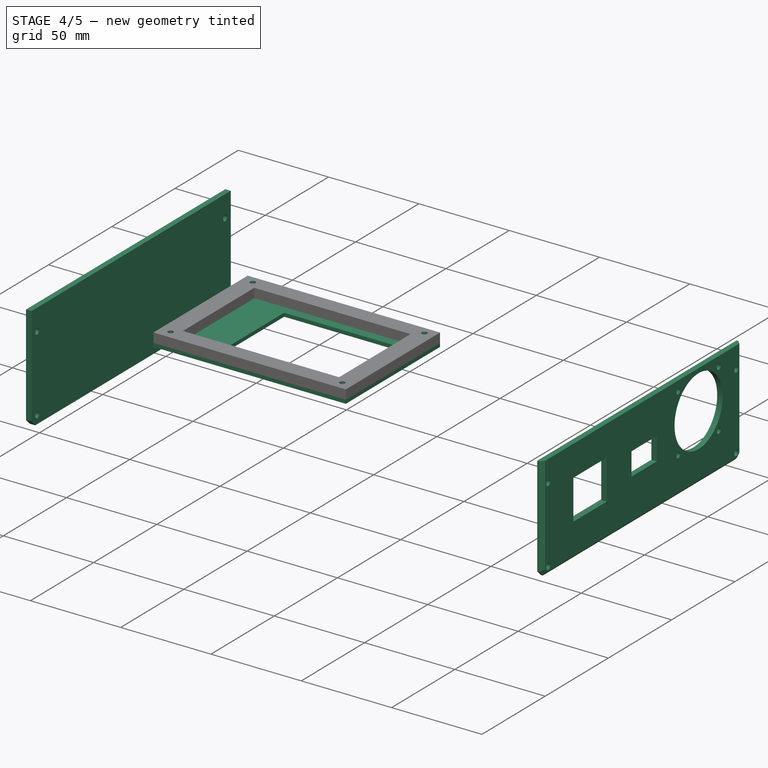
[diagram: stage 4 of 5 — iso view after this stage's code; geometry added in this stage tinted green]
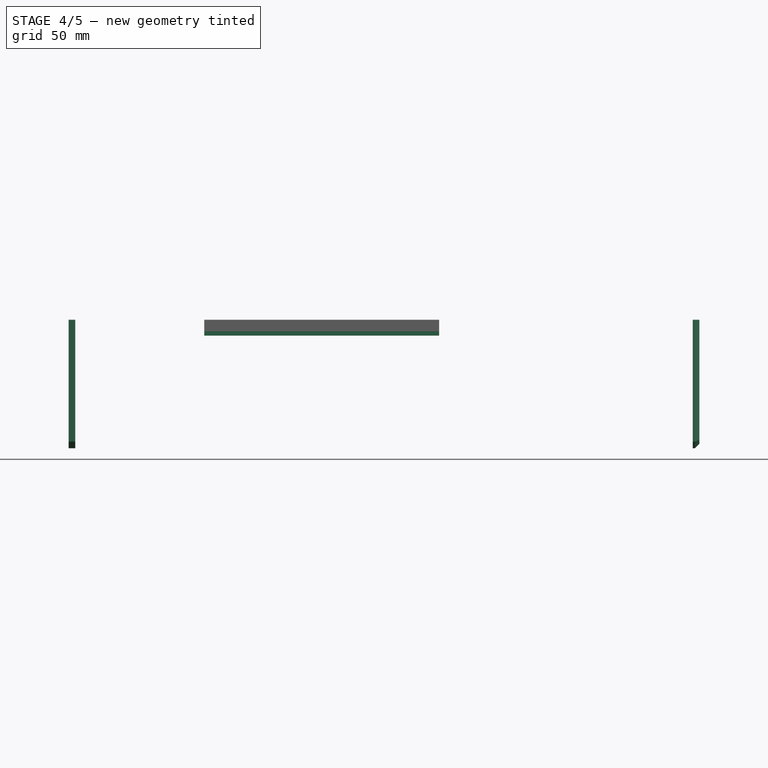
[diagram: stage 4 of 5 — front view after this stage's code; geometry added in this stage tinted green]
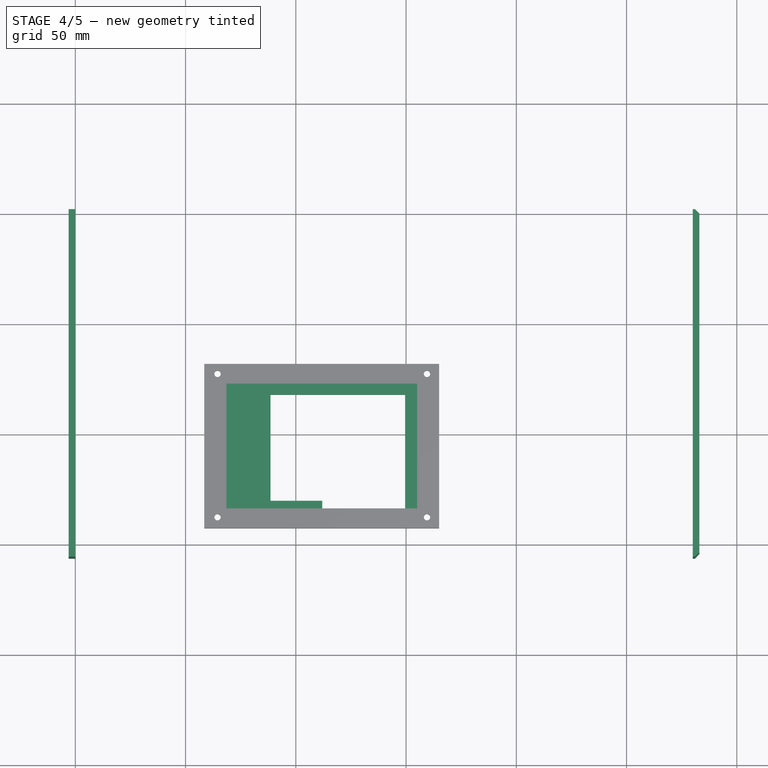
[diagram: stage 4 of 5 — top view after this stage's code; geometry added in this stage tinted green]
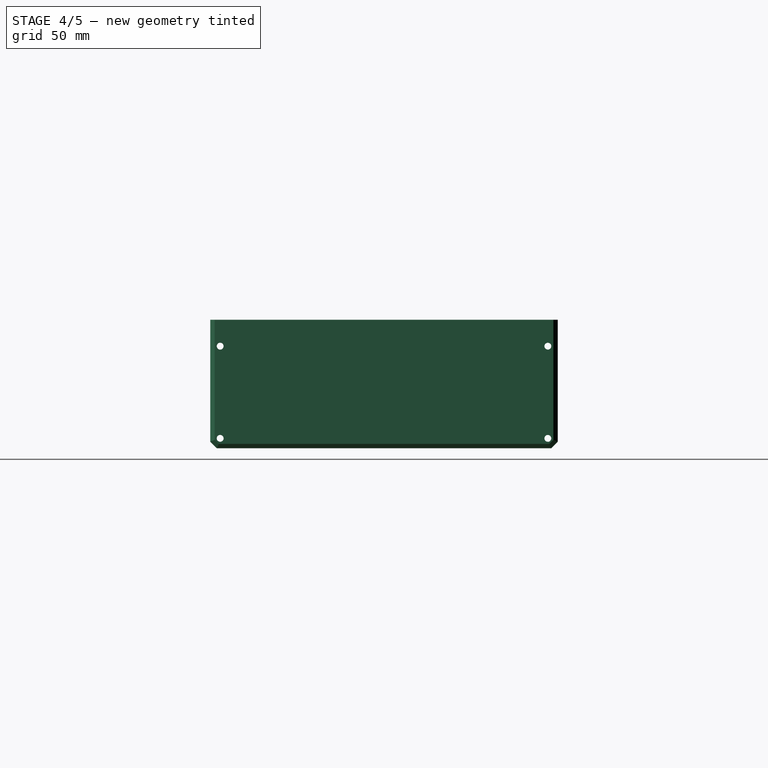
[diagram: stage 4 of 5 — right view after this stage's code; geometry added in this stage tinted green]
FEATURE [PartDesign::Body] Body004  label="Case"
  Group = -> [ShapeBinder,Sketch004,ShapeBinder001,Pad004,Sketch005,Pocket,Sketch006,DatumPlane,Pocket001,Sketch007,Pocket002,Mirrored,Sketch008,Pocket003,DatumPlane001,Mirrored001,Sketch009,Pocket004,Chamfer,Fillet,Chamfer001,Chamfer002]
  Origin = -> Origin004
  Tip = -> Chamfer002
FEATURE [PartDesign::ShapeBinder] ShapeBinder002
  Support = -> [Pad]
  TraceSupport = false
FEATURE [PartDesign::ShapeBinder] ShapeBinder003
  Placement = pos=(0,0,0) rot=(0.57735,0.57735,0.57735;2.0944rad)
  Support = -> [Chamfer002]
  TraceSupport = false
FEATURE [Sketcher::SketchObject] Sketch010
  ExternalGeometry = -> [ShapeBinder003]
  FullyConstrained = true
  MapMode = 5
  Placement = pos=(3e-16,0,0) rot=(0.57735,0.57735,-0.57735;4.18879rad)
  Support = -> [ShapeBinder003]
  expr: Constraints[16] = <<dims>>.Mthree_free
  expr: Constraints[17] = <<dims>>.Mthree_free
  expr: Constraints[18] = <<dims>>.Mthree_free
  expr: Constraints[19] = <<dims>>.Mthree_free
  sketch-geometry (10):
    g0: LineSegment StartX=-6.3 StartY=-46 StartZ=0 EndX=151.3 EndY=-46 EndZ=0
    g1: LineSegment StartX=151.3 StartY=-46 StartZ=0 EndX=151.3 EndY=9.3 EndZ=0
    g2: LineSegment StartX=151.3 StartY=9.3 StartZ=0 EndX=148.3 EndY=12.3 EndZ=0
    g3: LineSegment StartX=148.3 StartY=12.3 StartZ=0 EndX=-3.3 EndY=12.3 EndZ=0
    g4: LineSegment StartX=-3.3 StartY=12.3 StartZ=0 EndX=-6.3 EndY=9.3 EndZ=0
    g5: LineSegment StartX=-6.3 StartY=9.3 StartZ=0 EndX=-6.3 EndY=-46 EndZ=0
    g6: Circle CenterX=-1.8 CenterY=7.8 CenterZ=0 NormalX=0 NormalY=0 NormalZ=1 AngleXU=0 Radius=1.55
    g7: Circle CenterX=-1.8 CenterY=-34 CenterZ=0 NormalX=0 NormalY=0 NormalZ=1 AngleXU=0 Radius=1.55
    g8: Circle CenterX=146.8 CenterY=7.8 CenterZ=0 NormalX=0 NormalY=0 NormalZ=1 AngleXU=0 Radius=1.55
    g9: Circle CenterX=146.8 CenterY=-34 CenterZ=0 NormalX=0 NormalY=0 NormalZ=1 AngleXU=0 Radius=1.55
  constraints (20):
    c: Coincident(g0,g-5)
    c: Coincident(g0,g-6)
    c: Coincident(g1,g0)
    c: Coincident(g1,g-7)
    c: Coincident(g2,g1)
    c: Coincident(g2,g-7)
    c: Coincident(g3,g2)
    c: Coincident(g3,g-4)
    c: Coincident(g4,g3)
    c: Coincident(g4,g-5)
    c: Coincident(g5,g4)
    c: Coincident(g5,g0)
    c: Coincident(g6,g-11)
    c: Coincident(g7,g-10)
    c: Coincident(g8,g-8)
    c: Coincident(g9,g-9)
    c: Diameter(g6) = 3.1
    c: Diameter(g7) = 3.1
    c: Diameter(g9) = 3.1
    c: Diameter(g8) = 3.1
FEATURE [PartDesign::Pad] Pad005
  Direction = (-1,1e-16,-3e-16)
  Length = 3
  Length2 = 10
  Placement = pos=(0,0,0) rot=(0.57735,0.57735,0.57735;2.0944rad)
  Profile = -> Sketch010
  ReferenceAxis = -> Sketch010 [N_Axis]
  Type = 0
FEATURE [PartDesign::Body] Body005  label="LeftSide"
  Group = -> [ShapeBinder002,ShapeBinder003,Sketch010,Pad005,Sketch011,Pocket005,Fillet001,Chamfer003]
  Origin = -> Origin005
  Tip = -> Chamfer003
FEATURE [PartDesign::ShapeBinder] ShapeBinder004
  Support = -> [Pad]
  TraceSupport = false
FEATURE [PartDesign::ShapeBinder] ShapeBinder005
  Placement = pos=(0,0,0) rot=(0.57735,0.57735,0.57735;2.0944rad)
  Support = -> [Chamfer002]
  TraceSupport = false
FEATURE [Sketcher::SketchObject] Sketch012
  ExternalGeometry = -> [ShapeBinder005]
  FullyConstrained = true
  MapMode = 5
  Placement = pos=(280,2.493e-13,3.11e-14) rot=(0.57735,0.57735,0.57735;2.0944rad)
  Support = -> [ShapeBinder005]
  expr: Constraints[16] = <<dims>>.Mthree_free
  expr: Constraints[17] = <<dims>>.Mthree_free
  expr: Constraints[18] = <<dims>>.Mthree_free
  expr: Constraints[19] = <<dims>>.Mthree_free
  sketch-geometry (10):
    g0: LineSegment StartX=-6.3 StartY=-9.3 StartZ=0 EndX=-3.3 EndY=-12.3 EndZ=0
    g1: LineSegment StartX=-3.3 StartY=-12.3 StartZ=0 EndX=148.3 EndY=-12.3 EndZ=0
    g2: LineSegment StartX=148.3 StartY=-12.3 StartZ=0 EndX=151.3 EndY=-9.3 EndZ=0
    g3: LineSegment StartX=151.3 StartY=-9.3 StartZ=0 EndX=151.3 EndY=46 EndZ=0
    g4: LineSegment StartX=151.3 StartY=46 StartZ=0 EndX=-6.3 EndY=46 EndZ=0
    g5: LineSegment StartX=-6.3 StartY=46 StartZ=0 EndX=-6.3 EndY=-9.3 EndZ=0
    g6: Circle CenterX=-1.8 CenterY=34 CenterZ=0 NormalX=0 NormalY=0 NormalZ=1 AngleXU=0 Radius=1.55
    g7: Circle CenterX=-1.8 CenterY=-7.8 CenterZ=0 NormalX=0 NormalY=0 NormalZ=1 AngleXU=0 Radius=1.55
    g8: Circle CenterX=146.8 CenterY=-7.8 CenterZ=0 NormalX=0 NormalY=0 NormalZ=1 AngleXU=0 Radius=1.55
    g9: Circle CenterX=146.8 CenterY=34 CenterZ=0 NormalX=0 NormalY=0 NormalZ=1 AngleXU=0 Radius=1.55
  constraints (20):
    c: Coincident(g0,g-3)
    c: Coincident(g0,g-4)
    c: Coincident(g1,g0)
    c: Coincident(g1,g-4)
    c: Coincident(g2,g1)
    c: Coincident(g2,g-5)
    c: Coincident(g3,g2)
    c: Coincident(g3,g-5)
    c: Coincident(g4,g3)
    c: Coincident(g4,g-3)
    c: Coincident(g5,g4)
    c: Coincident(g5,g0)
    c: Coincident(g6,g-6)
    c: Coincident(g7,g-7)
    c: Coincident(g8,g-8)
    c: Coincident(g9,g-9)
    c: Diameter(g6) = 3.1
    c: Diameter(g7) = 3.1
    c: Diameter(g8) = 3.1
    c: Diameter(g9) = 3.1
FEATURE [PartDesign::Pad] Pad006
  Direction = (1,0,2e-16)
  Length = 3
  Length2 = 10
  Placement = pos=(0,0,0) rot=(0.57735,0.57735,0.57735;2.0944rad)
  Profile = -> Sketch012
  ReferenceAxis = -> Sketch012 [N_Axis]
  Type = 0
FEATURE [Sketcher::SketchObject] Sketch013
  ExternalGeometry = -> [ShapeBinder004]
  FullyConstrained = true
  MapMode = 5
  Placement = pos=(280,0,0) rot=(0.57735,0.57735,0.57735;2.0944rad)
  Support = -> [ShapeBinder004]
  expr: Constraints[34] = <<dims>>.Mthree
  expr: Constraints[35] = <<dims>>.Mthree
  expr: Constraints[36] = <<dims>>.Mthree
  expr: Constraints[37] = <<dims>>.Mthree
  sketch-geometry (16):
    g0: LineSegment StartX=18 StartY=29 StartZ=0 EndX=44.3 EndY=29 EndZ=0
    g1: LineSegment StartX=44.3 StartY=29 StartZ=0 EndX=44.3 EndY=7 EndZ=0
    g2: LineSegment StartX=44.3 StartY=7 StartZ=0 EndX=18 EndY=7 EndZ=0
    g3: LineSegment StartX=18 StartY=7 StartZ=0 EndX=18 EndY=29 EndZ=0
    g4: LineSegment StartX=64 StartY=24.7 StartZ=0 EndX=84 EndY=24.7 EndZ=0
    g5: LineSegment StartX=84 StartY=24.7 StartZ=0 EndX=84 EndY=12 EndZ=0
    g6: LineSegment StartX=84 StartY=12 StartZ=0 EndX=64 EndY=12 EndZ=0
    g7: LineSegment StartX=64 StartY=12 StartZ=0 EndX=64 EndY=24.7 EndZ=0
    g8: LineSegment StartX=101 StartY=40.5 StartZ=0 EndX=133 EndY=40.5 EndZ=0
    g9: LineSegment StartX=133 StartY=40.5 StartZ=0 EndX=133 EndY=8.5 EndZ=0
    g10: LineSegment StartX=133 StartY=8.5 StartZ=0 EndX=101 EndY=8.5 EndZ=0
    g11: LineSegment StartX=101 StartY=8.5 StartZ=0 EndX=101 EndY=40.5 EndZ=0
    g12: Circle CenterX=101 CenterY=40.5 CenterZ=0 NormalX=0 NormalY=0 NormalZ=1 AngleXU=0 Radius=1.45
    g13: Circle CenterX=133 CenterY=40.5 CenterZ=0 NormalX=0 NormalY=0 NormalZ=1 AngleXU=0 Radius=1.45
    g14: Circle CenterX=101 CenterY=8.5 CenterZ=0 NormalX=0 NormalY=0 NormalZ=1 AngleXU=0 Radius=1.45
    g15: Circle CenterX=133 CenterY=8.5 CenterZ=0 NormalX=0 NormalY=0 NormalZ=1 AngleXU=0 Radius=1.45
  constraints (44):
    c: Coincident(g0,g1)
    c: Coincident(g1,g2)
    c: Coincident(g2,g3)
    c: Coincident(g3,g0)
    c: Horizontal(g0)
    c: Horizontal(g2)
    c: Vertical(g1)
    c: Vertical(g3)
    c: Coincident(g4,g5)
    c: Coincident(g5,g6)
    c: Coincident(g6,g7)
    c: Coincident(g7,g4)
    c: Horizontal(g4)
    c: Horizontal(g6)
    c: Vertical(g5)
    c: Vertical(g7)
    c: Distance(g5) = 12.7
    c: Distance(g4) = 20
    c: Distance(g0) = 26.3
    c: Distance(g1) = 22
    c: Coincident(g8,g9)
    c: Coincident(g9,g10)
    c: Coincident(g10,g11)
    c: Coincident(g11,g8)
    c: Horizontal(g8)
    c: Horizontal(g10)
    c: Vertical(g9)
    c: Vertical(g11)
    c: Distance(g8) = 32
    c: Distance(g9) = 32
    c: Coincident(g12,g8)
    c: Coincident(g13,g8)
    c: Coincident(g14,g10)
    c: Coincident(g15,g9)
    c: Diameter(g12) = 2.9
    c: Diameter(g13) = 2.9
    c: Diameter(g15) = 2.9
    c: Diameter(g14) = 2.9
    c: DistanceX(g-3,g2) = 18
    c: DistanceX(g-3,g6) = 64
    c: DistanceX(g15,g-4) = 12
    c: DistanceY(g-4,g15) = 6.5
    c: DistanceY(g-3,g2) = 5
    c: DistanceY(g-3,g6) = 10
FEATURE [PartDesign::Pocket] Pocket006
  BaseFeature = -> Pad006
  Direction = (-1,0,0)
  Length = 5
  Length2 = 5
  Placement = pos=(0,0,0) rot=(0.57735,0.57735,0.57735;2.0944rad)
  Profile = -> Sketch013
  ReferenceAxis = -> Sketch013 [N_Axis]
  Reversed = true
  Type = 0
FEATURE [Sketcher::SketchObject] Sketch014
  ExternalGeometry = -> [Pocket006]
  FullyConstrained = true
  MapMode = 5
  Placement = pos=(283,5.972e-13,3.14e-14) rot=(0.57735,0.57735,0.57735;2.0944rad)
  Support = -> [Pocket006]
  sketch-geometry (3):
    g0: LineSegment StartX=101 StartY=40.5 StartZ=0 EndX=117 EndY=24.5 EndZ=0
    g1: LineSegment StartX=117 StartY=24.5 StartZ=0 EndX=133 EndY=8.5 EndZ=0
    g2: Circle CenterX=117 CenterY=24.5 CenterZ=0 NormalX=0 NormalY=0 NormalZ=1 AngleXU=0 Radius=19
  constraints (6):
    c: Coincident(g0,g-3)
    c: Coincident(g1,g-4)
    c: Equal(g0,g1)
    c: Tangent(g0,g1) = -1.5708
    c: Coincident(g2,g0)
    c: Diameter(g2) = 38
FEATURE [PartDesign::Pocket] Pocket007
  BaseFeature = -> Pocket006
  Direction = (-1,-2.1e-15,-1e-16)
  Length = 5
  Length2 = 5
  Placement = pos=(0,0,0) rot=(0.57735,0.57735,0.57735;2.0944rad)
  Profile = -> Sketch014
  ReferenceAxis = -> Sketch014 [N_Axis]
  Type = 0
FEATURE [PartDesign::Chamfer] Chamfer004
  Angle = 45
  Base = -> Pocket007 [Edge7,Edge4,Edge10,Edge32,Edge33]
  BaseFeature = -> Pocket007
  ChamferType = 0
  FlipDirection = false
  Placement = pos=(0,0,0) rot=(0.57735,0.57735,0.57735;2.0944rad)
  Size = 2
  Size2 = 1
  SupportTransform = false
  UseAllEdges = false
FEATURE [Sketcher::SketchObject] Sketch021
  ExternalGeometry = -> [Pad009]
  FullyConstrained = true
  MapMode = 5
  Placement = pos=(-1.18e-14,2.9e-14,40.8) rot=(0.707107,0.707107,0;3.14159rad)
  Support = -> [Pad009]
  sketch-geometry (10):
    g0: LineSegment StartX=6.6 StartY=165 StartZ=0 EndX=81.1 EndY=165 EndZ=0
    g1: LineSegment StartX=81.1 StartY=165 StartZ=0 EndX=81.1 EndY=58.5 EndZ=0
    g2: LineSegment StartX=81.1 StartY=58.5 StartZ=0 EndX=6.6 EndY=58.5 EndZ=0
    g3: LineSegment StartX=6.6 StartY=58.5 StartZ=0 EndX=6.6 EndY=165 EndZ=0
    g4: LineSegment StartX=67.1 StartY=149.6 StartZ=0 EndX=15.6 EndY=149.6 EndZ=0
    g5: LineSegment StartX=15.6 StartY=149.6 StartZ=0 EndX=15.6 EndY=112 EndZ=0
    g6: LineSegment StartX=15.6 StartY=112 StartZ=0 EndX=19.1 EndY=112 EndZ=0
    g7: LineSegment StartX=19.1 StartY=112 StartZ=0 EndX=19.1 EndY=88.5 EndZ=0
    g8: LineSegment StartX=19.1 StartY=88.5 StartZ=0 EndX=67.1 EndY=88.5 EndZ=0
    g9: LineSegment StartX=67.1 StartY=88.5 StartZ=0 EndX=67.1 EndY=149.6 EndZ=0
  constraints (28):
    c: Coincident(g0,g1)
    c: Coincident(g1,g2)
    c: Coincident(g2,g3)
    c: Coincident(g3,g0)
    c: Horizontal(g0)
    c: Horizontal(g2)
    c: Vertical(g1)
    c: Vertical(g3)
    c: Coincident(g0,g-3)
    c: Coincident(g1,g-4)
    c: Horizontal(g4)
    c: Coincident(g5,g4)
    c: Vertical(g5)
    c: Coincident(g6,g5)
    c: Coincident(g7,g6)
    c: Vertical(g7)
    c: Coincident(g8,g7)
    c: Horizontal(g8)
    c: Coincident(g9,g8)
    c: Coincident(g9,g4)
    c: Vertical(g9)
    c: DistanceY(g4,g-5) = 5.4
    c: DistanceX(g4,g-6) = 5
    c: Horizontal(g6)
    c: DistanceX(g4,g-5) = 0
    c: DistanceY(g5,g-5) = 43
    c: DistanceX(g-5,g6) = 3.5
    c: DistanceY(g-5,g7) = 20
FEATURE [PartDesign::Pad] Pad010
  BaseFeature = -> Pad009
  Direction = (3e-16,-7e-16,-1)
  Length = 2
  Length2 = 10
  Placement = pos=(0,0,0) rot=(0.57735,0.57735,0.57735;2.0944rad)
  Profile = -> Sketch021
  ReferenceAxis = -> Sketch021 [N_Axis]
  Type = 0
FEATURE [Sketcher::SketchObject] Sketch022
  ExternalGeometry = -> [ShapeBinder010]
  FullyConstrained = true
  MapMode = 5
  Placement = pos=(-1.32e-14,3.53e-14,46) rot=(0,0,-1;1.5708rad)
  Support = -> [Pad010]
  expr: Constraints[4] = <<dims>>.Mthree
  expr: Constraints[5] = <<dims>>.Mthree
  expr: Constraints[6] = <<dims>>.Mthree
  expr: Constraints[7] = <<dims>>.Mthree
  sketch-geometry (4):
    g0: Circle CenterX=-76.6 CenterY=159.5 CenterZ=0 NormalX=0 NormalY=0 NormalZ=1 AngleXU=0 Radius=1.45
    g1: Circle CenterX=-11.6 CenterY=159.5 CenterZ=0 NormalX=0 NormalY=0 NormalZ=1 AngleXU=0 Radius=1.45
    g2: Circle CenterX=-11.6 CenterY=64.5 CenterZ=0 NormalX=0 NormalY=0 NormalZ=1 AngleXU=0 Radius=1.45
    g3: Circle CenterX=-76.6 CenterY=64.5 CenterZ=0 NormalX=0 NormalY=0 NormalZ=1 AngleXU=0 Radius=1.45
  constraints (8):
    c: Coincident(g0,g-5)
    c: Coincident(g1,g-6)
    c: Coincident(g2,g-4)
    c: Coincident(g3,g-3)
    c: Diameter(g0) = 2.9
    c: Diameter(g1) = 2.9
    c: Diameter(g2) = 2.9
    c: Diameter(g3) = 2.9
FEATURE [PartDesign::Pocket] Pocket011
  BaseFeature = -> Pad010
  Direction = (3e-16,-8e-16,-1)
  Length = 9
  Length2 = 5
  Placement = pos=(0,0,0) rot=(0.57735,0.57735,0.57735;2.0944rad)
  Profile = -> Sketch022
  ReferenceAxis = -> Sketch022 [N_Axis]
  Type = 0
FEATURE [PartDesign::Body] Body008  label="ScreenRetainer"
  Group = -> [ShapeBinder010,ShapeBinder011,ShapeBinder012,Sketch020,Pad009,Sketch021,Pad010,Sketch022,Pocket011]
  Origin = -> Origin008
  Tip = -> Pocket011
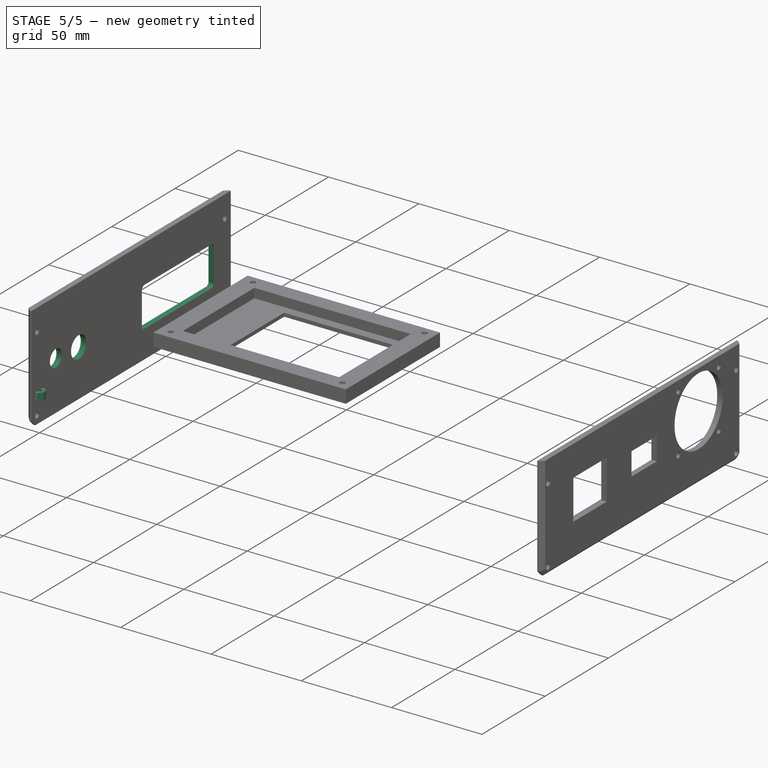
[diagram: stage 5 of 5 — iso view after this stage's code; geometry added in this stage tinted green]
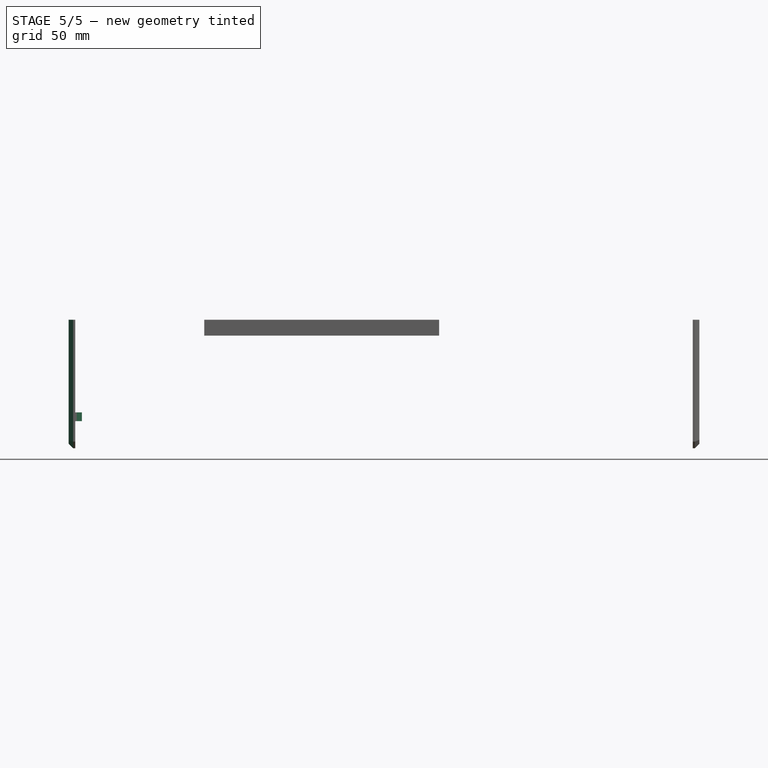
[diagram: stage 5 of 5 — front view after this stage's code; geometry added in this stage tinted green]
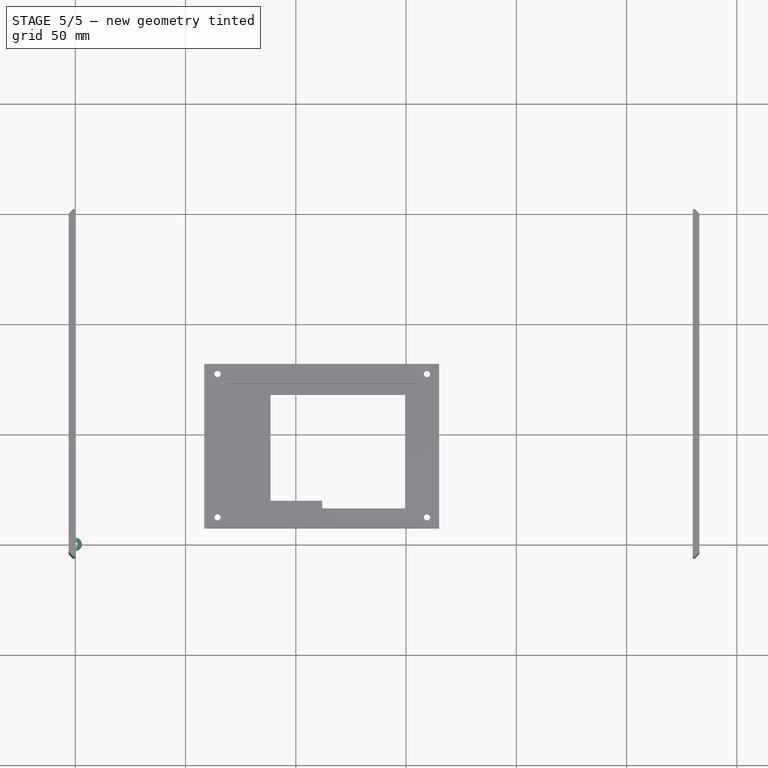
[diagram: stage 5 of 5 — top view after this stage's code; geometry added in this stage tinted green]
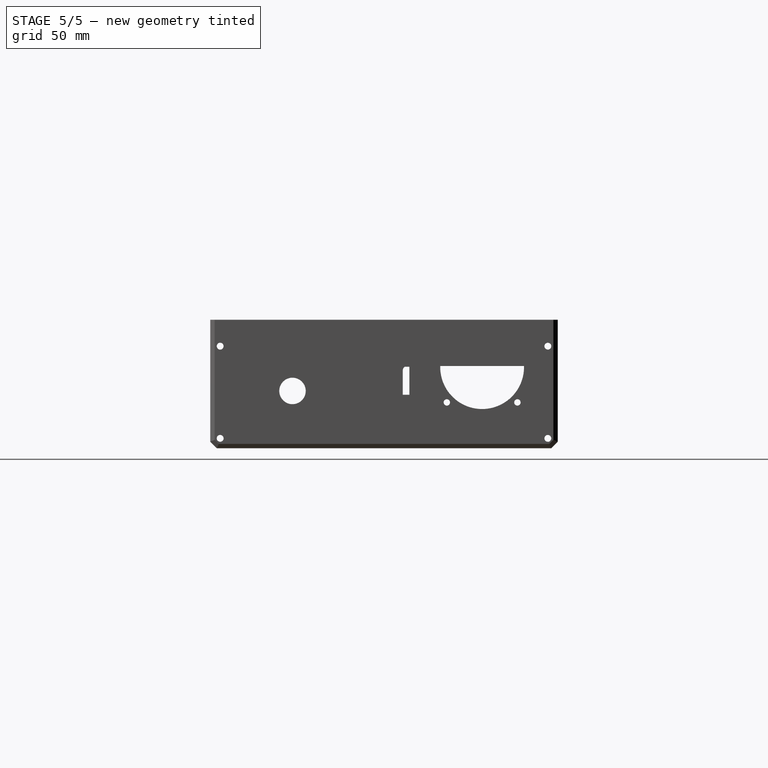
[diagram: stage 5 of 5 — right view after this stage's code; geometry added in this stage tinted green]
FEATURE [PartDesign::Body] Body  label="Backplane"
  Group = -> [Sketch,Pad]
  Origin = -> Origin
  Tip = -> Pad
FEATURE [Sketcher::SketchObject] Sketch001
  FullyConstrained = true
  MapMode = 5
  Support = -> [XY_Plane001]
  sketch-geometry (2):
    g0: Circle CenterX=0 CenterY=0 CenterZ=0 NormalX=0 NormalY=0 NormalZ=1 AngleXU=0 Radius=1.6
    g1: Circle CenterX=0 CenterY=0 CenterZ=0 NormalX=0 NormalY=0 NormalZ=1 AngleXU=0 Radius=3
  constraints (4):
    c: Coincident(g0,g-1)
    c: Coincident(g1,g0)
    c: Diameter(g0) = 3.2
    c: Diameter(g1) = 6
FEATURE [PartDesign::Pad] Pad001
  Direction = (0,0,1)
  Length = 4
  Length2 = 10
  Profile = -> Sketch001
  ReferenceAxis = -> Sketch001 [N_Axis]
  Type = 0
FEATURE [PartDesign::Body] Body001  label="M3_standoff"
  Group = -> [Sketch001,Pad001]
  Origin = -> Origin001
  Tip = -> Pad001
FEATURE [Sketcher::SketchObject] Sketch002
  FullyConstrained = true
  MapMode = 5
  Support = -> [XY_Plane002]
  sketch-geometry (2):
    g0: Circle CenterX=0 CenterY=0 CenterZ=0 NormalX=0 NormalY=0 NormalZ=1 AngleXU=0 Radius=1.3
    g1: Circle CenterX=0 CenterY=0 CenterZ=0 NormalX=0 NormalY=0 NormalZ=1 AngleXU=0 Radius=3
  constraints (4):
    c: Coincident(g0,g-1)
    c: Coincident(g1,g0)
    c: Diameter(g0) = 2.6
    c: Diameter(g1) = 6
FEATURE [PartDesign::Pad] Pad002
  Direction = (0,0,1)
  Length = 4
  Length2 = 10
  Profile = -> Sketch002
  ReferenceAxis = -> Sketch002 [N_Axis]
  Type = 0
FEATURE [PartDesign::Body] Body002  label="M2.5_standoff"
  Group = -> [Sketch002,Pad002]
  Origin = -> Origin002
  Tip = -> Pad002
FEATURE [Sketcher::SketchObject] Sketch003
  FullyConstrained = true
  MapMode = 5
  Support = -> [XY_Plane003]
  sketch-geometry (2):
    g0: Circle CenterX=0 CenterY=0 CenterZ=0 NormalX=0 NormalY=0 NormalZ=1 AngleXU=0 Radius=1.05
    g1: Circle CenterX=0 CenterY=0 CenterZ=0 NormalX=0 NormalY=0 NormalZ=1 AngleXU=0 Radius=2.5
  constraints (4):
    c: Coincident(g0,g-1)
    c: Coincident(g1,g0)
    c: Diameter(g0) = 2.1
    c: Diameter(g1) = 5
FEATURE [PartDesign::Pad] Pad003
  Direction = (0,0,1)
  Length = 3
  Length2 = 10
  Profile = -> Sketch003
  ReferenceAxis = -> Sketch003 [N_Axis]
  Type = 0
FEATURE [Sketcher::SketchObject] Sketch011
  ExternalGeometry = -> [ShapeBinder002]
  FullyConstrained = true
  MapMode = 5
  Placement = pos=(0,0,0) rot=(0.57735,-0.57735,-0.57735;2.0944rad)
  Support = -> [ShapeBinder002]
  sketch-geometry (6):
    g0: LineSegment StartX=-138 StartY=25 StartZ=0 EndX=-81 EndY=25 EndZ=0
    g1: LineSegment StartX=-81 StartY=25 StartZ=0 EndX=-81 EndY=3 EndZ=0
    g2: LineSegment StartX=-81 StartY=3 StartZ=0 EndX=-138 EndY=3 EndZ=0
    g3: LineSegment StartX=-138 StartY=3 StartZ=0 EndX=-138 EndY=25 EndZ=0
    g4: Circle CenterX=-31 CenterY=13.7 CenterZ=0 NormalX=0 NormalY=0 NormalZ=1 AngleXU=0 Radius=6
    g5: Circle CenterX=-13 CenterY=15 CenterZ=0 NormalX=0 NormalY=0 NormalZ=1 AngleXU=0 Radius=4.7
  constraints (18):
    c: Coincident(g0,g1)
    c: Coincident(g1,g2)
    c: Coincident(g2,g3)
    c: Coincident(g3,g0)
    c: Horizontal(g0)
    c: Horizontal(g2)
    c: Vertical(g1)
    c: Vertical(g3)
    c: DistanceX(g-3,g2) = 7
    c: DistanceY(g-3,g2) = 1
    c: DistanceX(g-3,g1) = 64
    c: DistanceY(g-3,g0) = 23
    c: Diameter(g4) = 12
    c: Diameter(g5) = 9.4
    c: DistanceX(g4,g-4) = 31
    c: DistanceX(g5,g-4) = 13
    c: DistanceY(g-4,g4) = 11.7
    c: DistanceY(g-4,g5) = 13
FEATURE [PartDesign::Pocket] Pocket005
  BaseFeature = -> Pad005
  Direction = (1,0,0)
  Length = 5
  Length2 = 5
  Placement = pos=(0,0,0) rot=(0.57735,0.57735,0.57735;2.0944rad)
  Profile = -> Sketch011
  ReferenceAxis = -> Sketch011 [N_Axis]
  Reversed = true
  Type = 0
FEATURE [PartDesign::Fillet] Fillet001
  Base = -> Pocket005 [Edge44,Edge42,Edge41,Edge43]
  BaseFeature = -> Pocket005
  Placement = pos=(0,0,0) rot=(0.57735,0.57735,0.57735;2.0944rad)
  Radius = 2
  SupportTransform = false
  UseAllEdges = false
FEATURE [PartDesign::Chamfer] Chamfer003
  Angle = 45
  Base = -> Fillet001 [Edge48,Edge43,Edge41,Edge47,Edge45]
  BaseFeature = -> Fillet001
  ChamferType = 0
  FlipDirection = false
  Placement = pos=(0,0,0) rot=(0.57735,0.57735,0.57735;2.0944rad)
  Size = 2
  Size2 = 1
  SupportTransform = false
  UseAllEdges = false
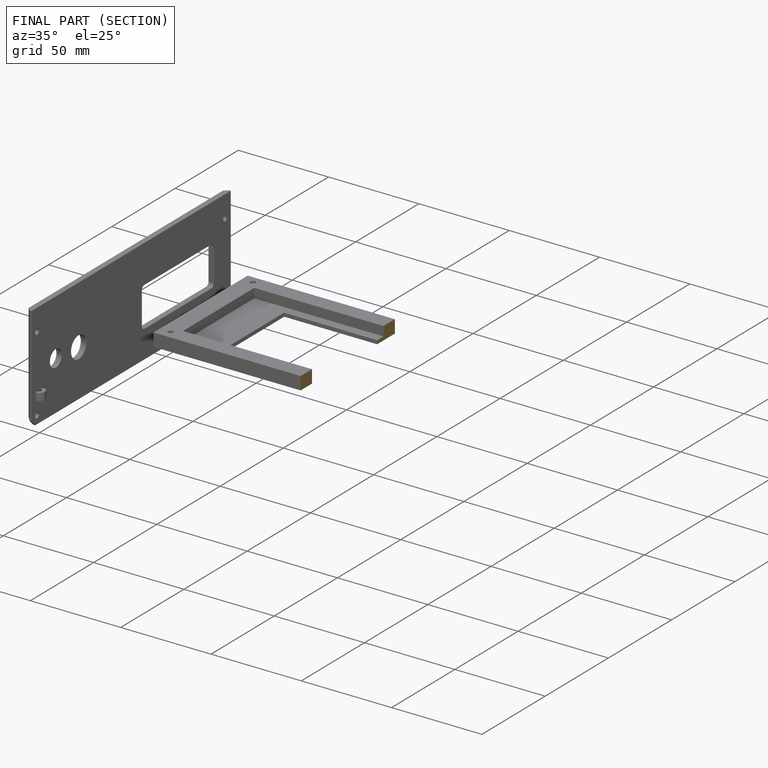
[diagram: finished part — half-section view (interior)]
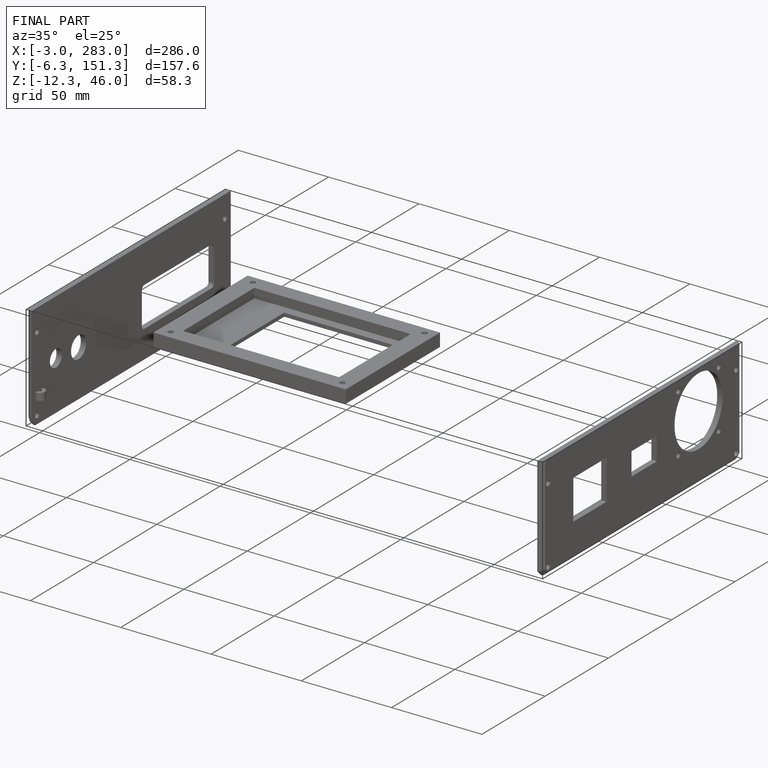
[diagram: finished part — iso view with bounding-box wireframe]
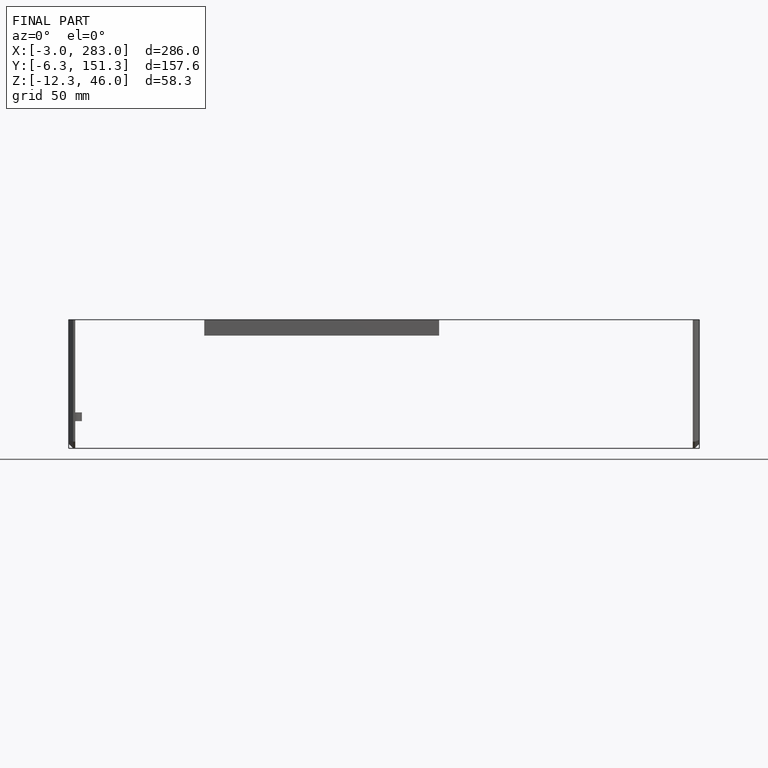
[diagram: finished part — front view with bounding-box wireframe]
